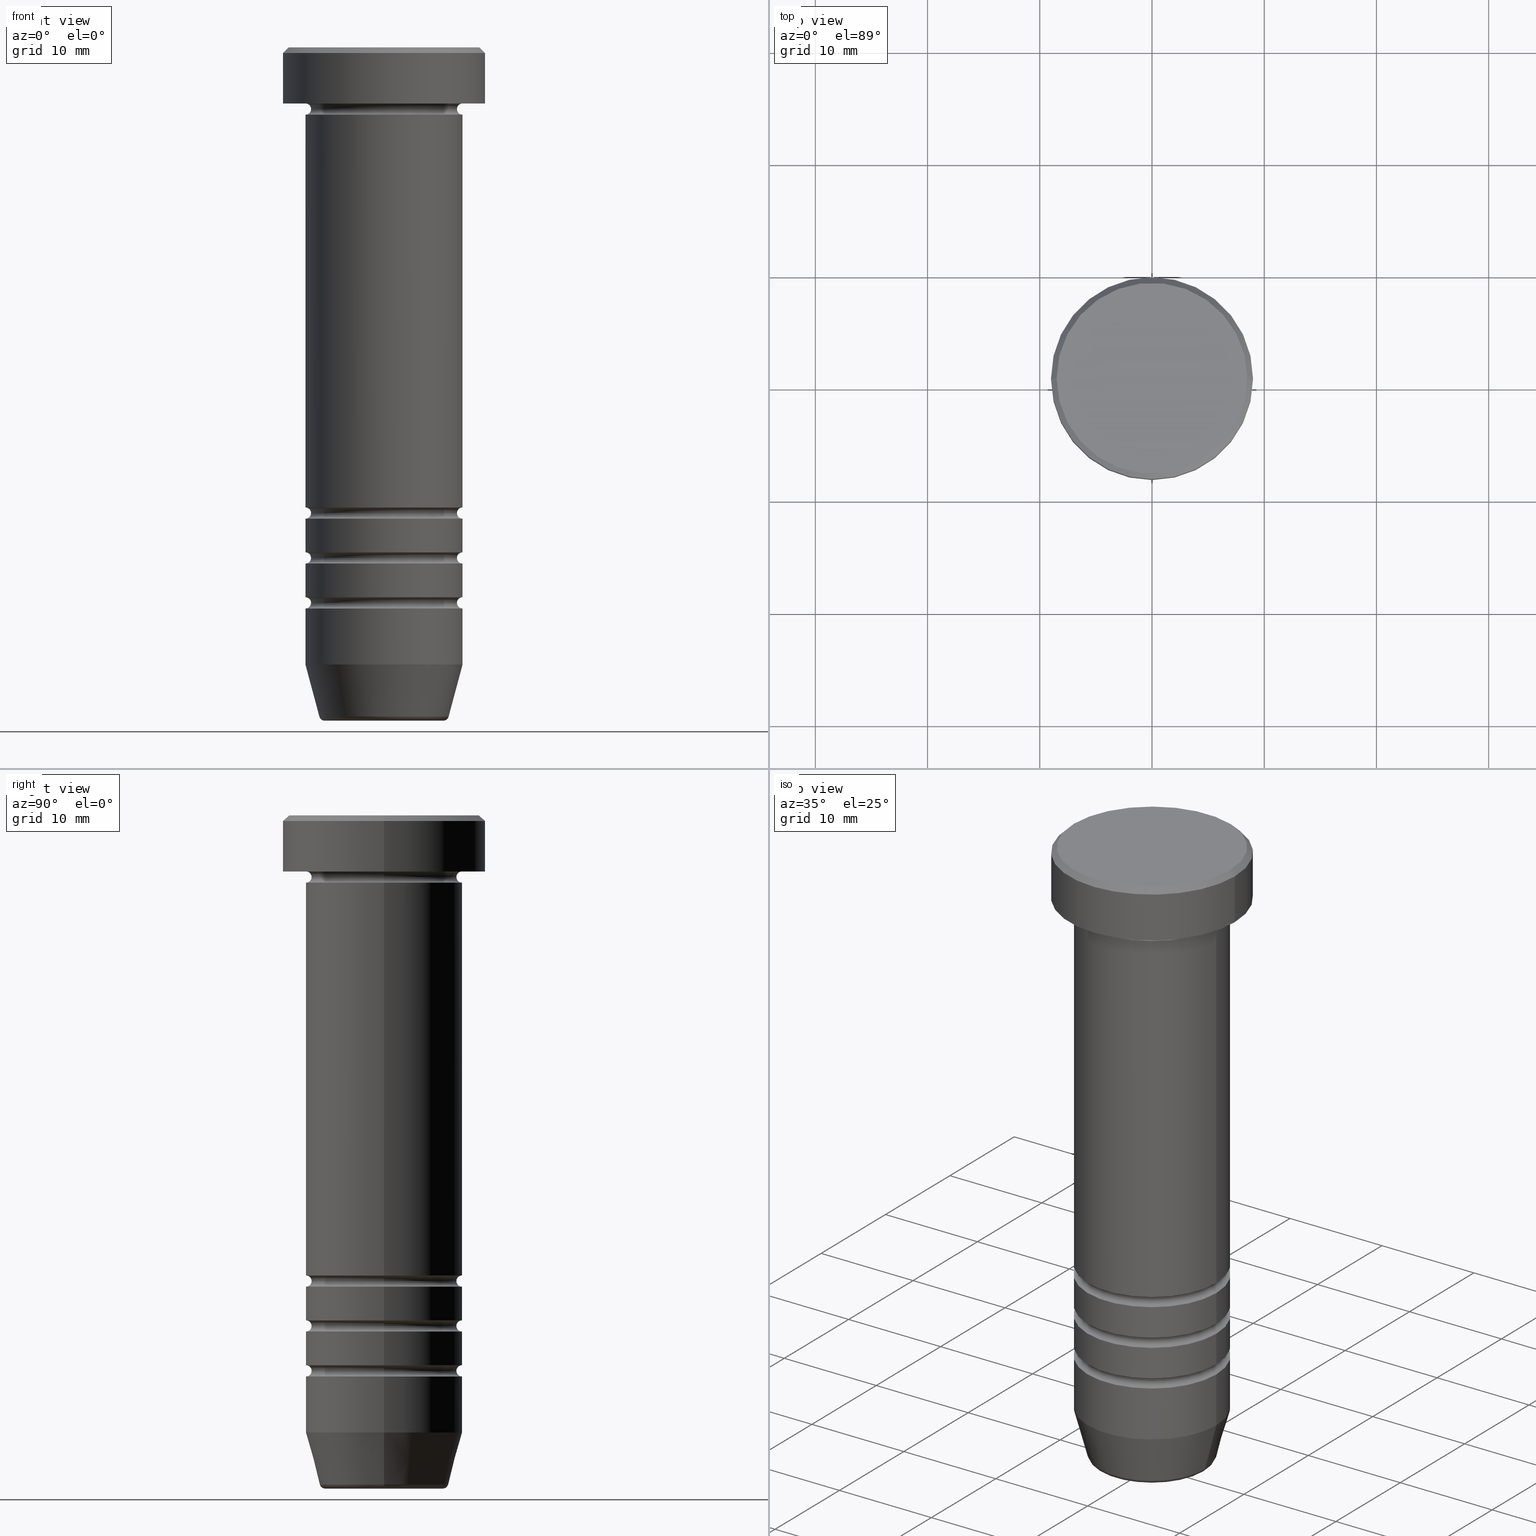
[diagram: canonical four-view strip — front | top / right | iso, engineering-drawing reading convention]
A machine part, canonical four-view strip (front | top / right | iso — engineering-drawing reading convention). The complete STEP part file that produces these views, byte-faithful:
ISO-10303-21;
HEADER;
FILE_DESCRIPTION (( 'STEP AP203' ),
    '1' );
FILE_NAME ('05f9.STEP',
    '2024-01-03T00:04:02',
    ( '' ),
    ( '' ),
    'SwSTEP 2.0',
    'SolidWorks 2019',
    '' );
FILE_SCHEMA (( 'CONFIG_CONTROL_DESIGN' ));
ENDSEC;

DATA;
#1 = CARTESIAN_POINT ( 'NONE',  ( 0.000000000000000000, 0.000000000000000000, -0.5000000000000056621 ) ) ;
#2 = ORIENTED_EDGE ( 'NONE', *, *, #955, .T. ) ;
#3 = DIRECTION ( 'NONE',  ( -1.000000000000000000, 0.000000000000000000, 0.000000000000000000 ) ) ;
#4 = DIRECTION ( 'NONE',  ( -0.000000000000000000, -0.000000000000000000, 1.000000000000000000 ) ) ;
#5 = CARTESIAN_POINT ( 'NONE',  ( 0.000000000000000000, 0.000000000000000000, 0.000000000000000000 ) ) ;
#6 = DIRECTION ( 'NONE',  ( 1.000000000000000000, 0.000000000000000000, 0.000000000000000000 ) ) ;
#7 = CARTESIAN_POINT ( 'NONE',  ( 6.999999999999996447, 0.000000000000000000, 0.000000000000000000 ) ) ;
#8 = APPLICATION_PROTOCOL_DEFINITION ( 'international standard', 'config_control_design', 1994, #907 ) ;
#9 = CARTESIAN_POINT ( 'NONE',  ( 7.000000000000000000, 0.000000000000000000, -6.000000000000001776 ) ) ;
#10 = EDGE_CURVE ( 'NONE', #786, #341, #89, .T. ) ;
#11 = EDGE_LOOP ( 'NONE', ( #547, #804, #512, #541 ) ) ;
#12 = TOROIDAL_SURFACE ( 'NONE', #826, 7.000000000000000888, 0.5000000000000000000 ) ;
#13 = DIRECTION ( 'NONE',  ( -1.000000000000000000, 0.000000000000000000, 0.000000000000000000 ) ) ;
#14 = CARTESIAN_POINT ( 'NONE',  ( 6.999999999999992895, 0.000000000000000000, -41.00000000000000711 ) ) ;
#15 = AXIS2_PLACEMENT_3D ( 'NONE', #179, #99, #753 ) ;
#16 = CIRCLE ( 'NONE', #831, 6.499999999999995559 ) ;
#17 = APPROVAL_STATUS ( 'not_yet_approved' ) ;
#18 = ORIENTED_EDGE ( 'NONE', *, *, #938, .T. ) ;
#19 = PRODUCT_RELATED_PRODUCT_CATEGORY ( 'detail', '', ( #574 ) ) ;
#20 = CARTESIAN_POINT ( 'NONE',  ( 0.000000000000000000, 0.000000000000000000, 0.000000000000000000 ) ) ;
#21 = DIRECTION ( 'NONE',  ( 1.224646799147353207E-16, 1.000000000000000000, 0.000000000000000000 ) ) ;
#22 = DIRECTION ( 'NONE',  ( 0.000000000000000000, 0.000000000000000000, -1.000000000000000000 ) ) ;
#23 = CARTESIAN_POINT ( 'NONE',  ( 0.000000000000000000, 0.000000000000000000, -42.00000000000000711 ) ) ;
#24 = ORIENTED_EDGE ( 'NONE', *, *, #1003, .T. ) ;
#25 = EDGE_CURVE ( 'NONE', #716, #763, #658, .T. ) ;
#26 = DIRECTION ( 'NONE',  ( 1.000000000000000000, 0.000000000000000000, 0.000000000000000000 ) ) ;
#27 = PERSON_AND_ORGANIZATION ( #197, #98 ) ;
#28 = CARTESIAN_POINT ( 'NONE',  ( 0.000000000000000000, 0.000000000000000000, -5.500000000000001776 ) ) ;
#29 = VERTEX_POINT ( 'NONE', #419 ) ;
#30 = DIRECTION ( 'NONE',  ( -0.000000000000000000, -0.000000000000000000, 1.000000000000000000 ) ) ;
#31 = ORIENTED_EDGE ( 'NONE', *, *, #594, .F. ) ;
#32 = LINE ( 'NONE', #345, #859 ) ;
#33 = CIRCLE ( 'NONE', #127, 7.000000000000000888 ) ;
#34 = EDGE_CURVE ( 'NONE', #371, #957, #259, .T. ) ;
#35 = AXIS2_PLACEMENT_3D ( 'NONE', #652, #659, #6 ) ;
#36 = DIRECTION ( 'NONE',  ( -0.000000000000000000, -0.000000000000000000, 1.000000000000000000 ) ) ;
#37 = AXIS2_PLACEMENT_3D ( 'NONE', #332, #821, #572 ) ;
#38 = EDGE_LOOP ( 'NONE', ( #140, #936, #318, #1026 ) ) ;
#39 = ORIENTED_EDGE ( 'NONE', *, *, #714, .F. ) ;
#40 = CARTESIAN_POINT ( 'NONE',  ( 0.000000000000000000, 0.000000000000000000, 0.000000000000000000 ) ) ;
#41 = CARTESIAN_POINT ( 'NONE',  ( -7.000000000000000000, 8.572527594031473190E-16, -6.000000000000001776 ) ) ;
#42 = DIRECTION ( 'NONE',  ( 0.000000000000000000, 0.000000000000000000, -1.000000000000000000 ) ) ;
#43 = EDGE_LOOP ( 'NONE', ( #699, #635, #152, #431 ) ) ;
#44 = PLANE ( 'NONE',  #1021 ) ;
#45 = CARTESIAN_POINT ( 'NONE',  ( 0.000000000000000000, 0.000000000000000000, -5.500000000000001776 ) ) ;
#46 = CARTESIAN_POINT ( 'NONE',  ( -6.999999999999999112, 8.572527594031472204E-16, 0.000000000000000000 ) ) ;
#47 = CARTESIAN_POINT ( 'NONE',  ( 0.000000000000000000, 0.000000000000000000, -41.50000000000000711 ) ) ;
#48 = VERTEX_POINT ( 'NONE', #182 ) ;
#49 = PLANE ( 'NONE',  #276 ) ;
#50 = EDGE_CURVE ( 'NONE', #471, #875, #755, .T. ) ;
#51 = ORIENTED_EDGE ( 'NONE', *, *, #353, .T. ) ;
#52 = APPLICATION_PROTOCOL_DEFINITION ( 'international standard', 'config_control_design', 1994, #853 ) ;
#53 = FACE_OUTER_BOUND ( 'NONE', #624, .T. ) ;
#54 = DIRECTION ( 'NONE',  ( -0.000000000000000000, -0.000000000000000000, 1.000000000000000000 ) ) ;
#55 = ORIENTED_EDGE ( 'NONE', *, *, #646, .T. ) ;
#56 = DIRECTION ( 'NONE',  ( -0.000000000000000000, -0.000000000000000000, 1.000000000000000000 ) ) ;
#57 = ORIENTED_EDGE ( 'NONE', *, *, #626, .T. ) ;
#58 = EDGE_CURVE ( 'NONE', #848, #612, #492, .T. ) ;
#59 = CARTESIAN_POINT ( 'NONE',  ( -7.000000000000000000, 8.572527594031472204E-16, -15.00000000000000000 ) ) ;
#60 = CYLINDRICAL_SURFACE ( 'NONE', #92, 6.999999999999996447 ) ;
#61 = ORIENTED_EDGE ( 'NONE', *, *, #141, .F. ) ;
#62 = ADVANCED_FACE ( 'NONE', ( #177 ), #573, .T. ) ;
#63 = DIRECTION ( 'NONE',  ( 1.000000000000000000, 0.000000000000000000, 0.000000000000000000 ) ) ;
#64 = ADVANCED_FACE ( 'NONE', ( #76 ), #892, .T. ) ;
#65 = AXIS2_PLACEMENT_3D ( 'NONE', #337, #640, #567 ) ;
#66 = DIRECTION ( 'NONE',  ( -0.000000000000000000, -0.000000000000000000, 1.000000000000000000 ) ) ;
#67 = AXIS2_PLACEMENT_3D ( 'NONE', #238, #83, #554 ) ;
#68 = AXIS2_PLACEMENT_3D ( 'NONE', #97, #751, #1042 ) ;
#69 = ORIENTED_EDGE ( 'NONE', *, *, #349, .F. ) ;
#70 = AXIS2_PLACEMENT_3D ( 'NONE', #241, #21, #591 ) ;
#71 = CC_DESIGN_APPROVAL ( #1011, ( #601 ) ) ;
#72 = CYLINDRICAL_SURFACE ( 'NONE', #411, 7.000000000000000000 ) ;
#73 = CARTESIAN_POINT ( 'NONE',  ( 7.000000000000000000, 0.000000000000000000, -15.00000000000000000 ) ) ;
#74 = DIRECTION ( 'NONE',  ( -1.000000000000000000, -1.224646799147351482E-16, 0.000000000000000000 ) ) ;
#75 = FACE_OUTER_BOUND ( 'NONE', #381, .T. ) ;
#76 = FACE_OUTER_BOUND ( 'NONE', #284, .T. ) ;
#77 = CALENDAR_DATE ( 2024, 3, 1 ) ;
#78 = DIRECTION ( 'NONE',  ( 1.000000000000000000, 0.000000000000000000, 0.000000000000000000 ) ) ;
#79 = MANIFOLD_SOLID_BREP ( 'Zkosen�1', #999 ) ;
#80 = FACE_OUTER_BOUND ( 'NONE', #902, .T. ) ;
#81 = DIRECTION ( 'NONE',  ( -0.000000000000000000, -0.000000000000000000, 1.000000000000000000 ) ) ;
#82 = DIRECTION ( 'NONE',  ( -0.000000000000000000, -0.000000000000000000, 1.000000000000000000 ) ) ;
#83 = DIRECTION ( 'NONE',  ( 0.000000000000000000, -1.000000000000000000, 0.000000000000000000 ) ) ;
#84 = EDGE_CURVE ( 'NONE', #316, #469, #312, .T. ) ;
#85 = CARTESIAN_POINT ( 'NONE',  ( 0.000000000000000000, 0.000000000000000000, -45.50000000000000000 ) ) ;
#86 = ORIENTED_EDGE ( 'NONE', *, *, #765, .F. ) ;
#87 = CARTESIAN_POINT ( 'NONE',  ( 0.000000000000000000, 0.000000000000000000, -50.00000000000000000 ) ) ;
#88 = CARTESIAN_POINT ( 'NONE',  ( 0.000000000000000000, 0.000000000000000000, -41.50000000000000711 ) ) ;
#89 = CIRCLE ( 'NONE', #824, 7.000000000000000000 ) ;
#90 = CARTESIAN_POINT ( 'NONE',  ( 0.000000000000000000, 0.000000000000000000, -15.00000000000000000 ) ) ;
#91 = AXIS2_PLACEMENT_3D ( 'NONE', #418, #4, #578 ) ;
#92 = AXIS2_PLACEMENT_3D ( 'NONE', #1029, #447, #298 ) ;
#93 = EDGE_CURVE ( 'NONE', #786, #680, #395, .T. ) ;
#94 = VECTOR ( 'NONE', #777, 1000.000000000000114 ) ;
#95 = DIRECTION ( 'NONE',  ( -1.000000000000000000, 0.000000000000000000, 0.000000000000000000 ) ) ;
#96 = LOCAL_TIME ( 1, 4, 2.000000000000000000, #104 ) ;
#97 = CARTESIAN_POINT ( 'NONE',  ( 0.000000000000000000, 0.000000000000000000, -59.62940952255126348 ) ) ;
#98 = ORGANIZATION ( 'NEUR�EN�', 'NEUR�EN�', '' ) ;
#99 = DIRECTION ( 'NONE',  ( -1.224646799147353207E-16, 1.000000000000000000, 0.000000000000000000 ) ) ;
#100 = CARTESIAN_POINT ( 'NONE',  ( 0.000000000000000000, 0.000000000000000000, -41.50000000000000711 ) ) ;
#101 = DIRECTION ( 'NONE',  ( 1.000000000000000000, 0.000000000000000000, 0.000000000000000000 ) ) ;
#102 = DIRECTION ( 'NONE',  ( 1.000000000000000000, 0.000000000000000000, 0.000000000000000000 ) ) ;
#103 = EDGE_CURVE ( 'NONE', #750, #379, #611, .T. ) ;
#104 = COORDINATED_UNIVERSAL_TIME_OFFSET ( 1, 0, .AHEAD. ) ;
#105 = CARTESIAN_POINT ( 'NONE',  ( 0.000000000000000000, 0.000000000000000000, -59.62940952255126348 ) ) ;
#106 = ORIENTED_EDGE ( 'NONE', *, *, #1036, .F. ) ;
#107 = DIRECTION ( 'NONE',  ( -0.000000000000000000, -0.000000000000000000, 1.000000000000000000 ) ) ;
#108 = APPROVAL_ROLE ( '' ) ;
#109 = ADVANCED_FACE ( 'NONE', ( #400 ), #913, .F. ) ;
#110 = EDGE_LOOP ( 'NONE', ( #18, #230 ) ) ;
#111 = AXIS2_PLACEMENT_3D ( 'NONE', #884, #876, #380 ) ;
#112 = AXIS2_PLACEMENT_3D ( 'NONE', #290, #874, #948 ) ;
#113 = AXIS2_PLACEMENT_3D ( 'NONE', #296, #533, #709 ) ;
#114 = PERSON_AND_ORGANIZATION ( #197, #98 ) ;
#115 = CYLINDRICAL_SURFACE ( 'NONE', #931, 6.999999999999996447 ) ;
#116 = EDGE_LOOP ( 'NONE', ( #422, #203, #1006, #251 ) ) ;
#117 = ADVANCED_FACE ( 'NONE', ( #983 ), #733, .T. ) ;
#118 = CARTESIAN_POINT ( 'NONE',  ( -6.999999999999995559, 0.000000000000000000, -45.50000000000000711 ) ) ;
#119 = PERSON_AND_ORGANIZATION ( #197, #98 ) ;
#120 = VERTEX_POINT ( 'NONE', #173 ) ;
#121 = ORIENTED_EDGE ( 'NONE', *, *, #697, .F. ) ;
#122 = ADVANCED_FACE ( 'NONE', ( #818 ), #12, .F. ) ;
#123 = ORIENTED_EDGE ( 'NONE', *, *, #513, .F. ) ;
#124 = ORIENTED_EDGE ( 'NONE', *, *, #25, .T. ) ;
#125 = ORIENTED_EDGE ( 'NONE', *, *, #1027, .F. ) ;
#126 = DIRECTION ( 'NONE',  ( -0.000000000000000000, -0.000000000000000000, 1.000000000000000000 ) ) ;
#127 = AXIS2_PLACEMENT_3D ( 'NONE', #484, #82, #333 ) ;
#128 = TOROIDAL_SURFACE ( 'NONE', #648, 7.000000000000000888, 0.5000000000000000000 ) ;
#129 = CARTESIAN_POINT ( 'NONE',  ( -6.999999999999996447, 8.572527594031468259E-16, 0.000000000000000000 ) ) ;
#130 = CONICAL_SURFACE ( 'NONE', #510, 8.499999999999996447, 0.7853981633974447263 ) ;
#131 = CARTESIAN_POINT ( 'NONE',  ( -7.000000000000000000, 8.572527594031473190E-16, -15.00000000000000000 ) ) ;
#132 = DIRECTION ( 'NONE',  ( 1.000000000000000000, 0.000000000000000000, 0.000000000000000000 ) ) ;
#133 = EDGE_LOOP ( 'NONE', ( #106, #820, #588, #440 ) ) ;
#134 = ADVANCED_FACE ( 'NONE', ( #144 ), #891, .T. ) ;
#135 = CARTESIAN_POINT ( 'NONE',  ( 5.660254037844382857, 0.000000000000000000, -60.00000000000000000 ) ) ;
#136 = ORIENTED_EDGE ( 'NONE', *, *, #272, .F. ) ;
#137 = CARTESIAN_POINT ( 'NONE',  ( 7.000000000000000000, 0.000000000000000000, 0.000000000000000000 ) ) ;
#138 = VERTEX_POINT ( 'NONE', #465 ) ;
#139 = CARTESIAN_POINT ( 'NONE',  ( 0.000000000000000000, 0.000000000000000000, -49.50000000000000000 ) ) ;
#140 = ORIENTED_EDGE ( 'NONE', *, *, #1003, .F. ) ;
#141 = EDGE_CURVE ( 'NONE', #371, #750, #1000, .T. ) ;
#142 = CARTESIAN_POINT ( 'NONE',  ( 6.999999999999995559, 8.572527594031467273E-16, -45.50000000000000711 ) ) ;
#143 = ORIENTED_EDGE ( 'NONE', *, *, #1044, .T. ) ;
#144 = FACE_OUTER_BOUND ( 'NONE', #116, .T. ) ;
#145 = ORIENTED_EDGE ( 'NONE', *, *, #714, .T. ) ;
#146 = DATE_TIME_ROLE ( 'classification_date' ) ;
#147 = TOROIDAL_SURFACE ( 'NONE', #91, 5.276590543854902116, 0.5000000000000000000 ) ;
#148 = CARTESIAN_POINT ( 'NONE',  ( 0.000000000000000000, 0.000000000000000000, -45.00000000000000000 ) ) ;
#149 = ORIENTED_EDGE ( 'NONE', *, *, #281, .T. ) ;
#150 = AXIS2_PLACEMENT_3D ( 'NONE', #355, #1002, #837 ) ;
#151 = AXIS2_PLACEMENT_3D ( 'NONE', #976, #909, #180 ) ;
#152 = ORIENTED_EDGE ( 'NONE', *, *, #779, .T. ) ;
#153 = ADVANCED_FACE ( 'NONE', ( #803 ), #49, .F. ) ;
#154 = APPROVAL_PERSON_ORGANIZATION ( #873, #866, #222 ) ;
#155 = CALENDAR_DATE ( 2024, 3, 1 ) ;
#156 = CARTESIAN_POINT ( 'NONE',  ( 0.000000000000000000, 0.000000000000000000, -49.50000000000000000 ) ) ;
#157 = ORIENTED_EDGE ( 'NONE', *, *, #825, .T. ) ;
#158 = CARTESIAN_POINT ( 'NONE',  ( 0.000000000000000000, 0.000000000000000000, -60.00000000000000000 ) ) ;
#159 = ORIENTED_EDGE ( 'NONE', *, *, #834, .T. ) ;
#160 = ADVANCED_FACE ( 'NONE', ( #636 ), #550, .T. ) ;
#161 = DIRECTION ( 'NONE',  ( 1.000000000000000000, 0.000000000000000000, 0.000000000000000000 ) ) ;
#162 = ORIENTED_EDGE ( 'NONE', *, *, #752, .F. ) ;
#163 = CARTESIAN_POINT ( 'NONE',  ( 0.000000000000000000, 0.000000000000000000, -5.000000000000000888 ) ) ;
#164 = DIRECTION ( 'NONE',  ( -1.000000000000000000, 0.000000000000000000, 0.000000000000000000 ) ) ;
#165 = AXIS2_PLACEMENT_3D ( 'NONE', #944, #357, #686 ) ;
#166 = AXIS2_PLACEMENT_3D ( 'NONE', #206, #737, #42 ) ;
#167 = DIRECTION ( 'NONE',  ( -0.000000000000000000, -0.000000000000000000, 1.000000000000000000 ) ) ;
#168 = CIRCLE ( 'NONE', #527, 5.276590543854902116 ) ;
#169 = APPROVAL_PERSON_ORGANIZATION ( #119, #621, #108 ) ;
#170 = DIRECTION ( 'NONE',  ( 0.000000000000000000, 0.000000000000000000, -1.000000000000000000 ) ) ;
#171 = LINE ( 'NONE', #1043, #974 ) ;
#172 = EDGE_CURVE ( 'NONE', #623, #323, #971, .T. ) ;
#173 = CARTESIAN_POINT ( 'NONE',  ( -8.499999999999996447, 0.000000000000000000, 0.000000000000000000 ) ) ;
#174 = FACE_OUTER_BOUND ( 'NONE', #535, .T. ) ;
#175 = DIRECTION ( 'NONE',  ( 0.000000000000000000, 0.000000000000000000, -1.000000000000000000 ) ) ;
#176 = EDGE_CURVE ( 'NONE', #763, #852, #458, .T. ) ;
#177 = FACE_OUTER_BOUND ( 'NONE', #11, .T. ) ;
#178 = DIRECTION ( 'NONE',  ( -0.000000000000000000, -0.000000000000000000, 1.000000000000000000 ) ) ;
#179 = CARTESIAN_POINT ( 'NONE',  ( 6.999999999999995559, 8.572527594031467273E-16, -41.50000000000000711 ) ) ;
#180 = DIRECTION ( 'NONE',  ( 1.000000000000000000, 0.000000000000000000, 0.000000000000000000 ) ) ;
#181 = CARTESIAN_POINT ( 'NONE',  ( 0.000000000000000000, 0.000000000000000000, -46.00000000000000711 ) ) ;
#182 = CARTESIAN_POINT ( 'NONE',  ( -6.999999999999992895, 8.572527594031466287E-16, -41.00000000000000711 ) ) ;
#183 = CIRCLE ( 'NONE', #209, 7.000000000000000000 ) ;
#184 = VECTOR ( 'NONE', #735, 1000.000000000000114 ) ;
#185 = ADVANCED_FACE ( 'NONE', ( #255 ), #147, .T. ) ;
#186 = AXIS2_PLACEMENT_3D ( 'NONE', #163, #802, #965 ) ;
#187 = LINE ( 'NONE', #7, #725 ) ;
#188 = ORIENTED_EDGE ( 'NONE', *, *, #738, .F. ) ;
#189 = ADVANCED_FACE ( 'NONE', ( #836 ), #542, .F. ) ;
#190 = CARTESIAN_POINT ( 'NONE',  ( -5.276590543854902116, 6.757689212787763943E-16, -60.00000000000000000 ) ) ;
#191 = CARTESIAN_POINT ( 'NONE',  ( -6.499999999999995559, 8.266365894244627431E-16, -49.50000000000000000 ) ) ;
#192 = DIRECTION ( 'NONE',  ( 1.000000000000000000, 0.000000000000000000, 0.000000000000000000 ) ) ;
#193 = ORIENTED_EDGE ( 'NONE', *, *, #141, .T. ) ;
#194 = APPROVAL_DATE_TIME ( #947, #621 ) ;
#195 = PRODUCT_DEFINITION_SHAPE ( 'NONE', 'NONE',  #719 ) ;
#196 = DIRECTION ( 'NONE',  ( 1.000000000000000000, 0.000000000000000000, 0.000000000000000000 ) ) ;
#197 = PERSON ( 'NEUR�EN�', 'NEUR�EN�', 'NEUR�EN�', ('NEUR�EN�'), ('NEUR�EN�'), ('NEUR�EN�') ) ;
#198 = ORIENTED_EDGE ( 'NONE', *, *, #681, .F. ) ;
#199 = AXIS2_PLACEMENT_3D ( 'NONE', #105, #822, #398 ) ;
#200 = AXIS2_PLACEMENT_3D ( 'NONE', #142, #303, #315 ) ;
#201 = DIRECTION ( 'NONE',  ( -1.000000000000000000, 0.000000000000000000, 0.000000000000000000 ) ) ;
#202 = EDGE_CURVE ( 'NONE', #957, #379, #426, .T. ) ;
#203 = ORIENTED_EDGE ( 'NONE', *, *, #415, .T. ) ;
#204 = CARTESIAN_POINT ( 'NONE',  ( 6.999999999999995559, 0.000000000000000000, -49.50000000000000000 ) ) ;
#205 = EDGE_LOOP ( 'NONE', ( #214, #145, #504, #627 ) ) ;
#206 = CARTESIAN_POINT ( 'NONE',  ( 6.999999999999995559, 0.000000000000000000, -45.50000000000000000 ) ) ;
#207 = EDGE_LOOP ( 'NONE', ( #1017, #675, #51, #839 ) ) ;
#208 = ORIENTED_EDGE ( 'NONE', *, *, #912, .F. ) ;
#209 = AXIS2_PLACEMENT_3D ( 'NONE', #668, #250, #812 ) ;
#210 = CIRCLE ( 'NONE', #15, 0.5000000000000004441 ) ;
#211 = AXIS2_PLACEMENT_3D ( 'NONE', #385, #962, #528 ) ;
#212 = PLANE ( 'NONE',  #211 ) ;
#213 = CARTESIAN_POINT ( 'NONE',  ( -6.499999999999995559, 8.266365894244630389E-16, -45.50000000000000000 ) ) ;
#214 = ORIENTED_EDGE ( 'NONE', *, *, #172, .T. ) ;
#215 = PERSON_AND_ORGANIZATION ( #197, #98 ) ;
#216 = CC_DESIGN_PERSON_AND_ORGANIZATION_ASSIGNMENT ( #114, #555, ( #601 ) ) ;
#217 = CARTESIAN_POINT ( 'NONE',  ( 0.000000000000000000, 0.000000000000000000, -50.00000000000000000 ) ) ;
#218 = CARTESIAN_POINT ( 'NONE',  ( 0.000000000000000000, 0.000000000000000000, -41.50000000000000711 ) ) ;
#219 = ORIENTED_EDGE ( 'NONE', *, *, #797, .F. ) ;
#220 = DIRECTION ( 'NONE',  ( -0.000000000000000000, -0.000000000000000000, 1.000000000000000000 ) ) ;
#221 = ORIENTED_EDGE ( 'NONE', *, *, #1027, .T. ) ;
#222 = APPROVAL_ROLE ( '' ) ;
#223 = DIRECTION ( 'NONE',  ( 0.000000000000000000, -0.000000000000000000, 1.000000000000000000 ) ) ;
#224 = ADVANCED_FACE ( 'NONE', ( #566 ), #683, .F. ) ;
#225 = VERTEX_POINT ( 'NONE', #9 ) ;
#226 = ORIENTED_EDGE ( 'NONE', *, *, #672, .T. ) ;
#227 = TOROIDAL_SURFACE ( 'NONE', #958, 5.276590543854902116, 0.5000000000000000000 ) ;
#228 = AXIS2_PLACEMENT_3D ( 'NONE', #85, #814, #78 ) ;
#229 = FACE_OUTER_BOUND ( 'NONE', #872, .T. ) ;
#230 = ORIENTED_EDGE ( 'NONE', *, *, #256, .T. ) ;
#231 = CIRCLE ( 'NONE', #1005, 0.5000000000000004441 ) ;
#232 = EDGE_CURVE ( 'NONE', #833, #225, #183, .T. ) ;
#233 = ORIENTED_EDGE ( 'NONE', *, *, #676, .F. ) ;
#234 = CARTESIAN_POINT ( 'NONE',  ( 0.000000000000000000, 0.000000000000000000, -45.50000000000000000 ) ) ;
#235 = ORIENTED_EDGE ( 'NONE', *, *, #365, .T. ) ;
#236 = ORIENTED_EDGE ( 'NONE', *, *, #548, .F. ) ;
#237 = DIRECTION ( 'NONE',  ( 1.000000000000000000, 0.000000000000000000, 0.000000000000000000 ) ) ;
#238 = CARTESIAN_POINT ( 'NONE',  ( 5.276590543854902116, 0.000000000000000000, -59.50000000000000000 ) ) ;
#239 = ADVANCED_FACE ( 'NONE', ( #75 ), #227, .T. ) ;
#240 = CARTESIAN_POINT ( 'NONE',  ( 6.999999999999998224, 0.000000000000000000, -45.00000000000000000 ) ) ;
#241 = CARTESIAN_POINT ( 'NONE',  ( -6.999999999999995559, 8.572527594031467273E-16, -49.50000000000000000 ) ) ;
#242 = DIRECTION ( 'NONE',  ( 1.000000000000000000, 0.000000000000000000, 0.000000000000000000 ) ) ;
#243 = AXIS2_PLACEMENT_3D ( 'NONE', #897, #914, #401 ) ;
#244 = AXIS2_PLACEMENT_3D ( 'NONE', #608, #941, #882 ) ;
#245 = DIRECTION ( 'NONE',  ( -0.000000000000000000, -0.000000000000000000, 1.000000000000000000 ) ) ;
#246 = AXIS2_PLACEMENT_3D ( 'NONE', #785, #546, #867 ) ;
#247 = LINE ( 'NONE', #749, #343 ) ;
#248 = EDGE_CURVE ( 'NONE', #316, #710, #407, .T. ) ;
#249 = DIRECTION ( 'NONE',  ( 0.000000000000000000, 0.000000000000000000, -1.000000000000000000 ) ) ;
#250 = DIRECTION ( 'NONE',  ( -0.000000000000000000, -0.000000000000000000, 1.000000000000000000 ) ) ;
#251 = ORIENTED_EDGE ( 'NONE', *, *, #262, .F. ) ;
#252 = DIRECTION ( 'NONE',  ( 1.000000000000000000, 0.000000000000000000, 0.000000000000000000 ) ) ;
#253 = ORIENTED_EDGE ( 'NONE', *, *, #202, .T. ) ;
#254 = CARTESIAN_POINT ( 'NONE',  ( 0.000000000000000000, 0.000000000000000000, -6.000000000000001776 ) ) ;
#255 = FACE_OUTER_BOUND ( 'NONE', #260, .T. ) ;
#256 = EDGE_CURVE ( 'NONE', #469, #516, #33, .T. ) ;
#257 = DIRECTION ( 'NONE',  ( 0.7071067811865451302, 8.659560562354903276E-17, -0.7071067811865500152 ) ) ;
#258 = CARTESIAN_POINT ( 'NONE',  ( 0.000000000000000000, 0.000000000000000000, -41.00000000000000711 ) ) ;
#259 = CIRCLE ( 'NONE', #65, 0.4999999999999995559 ) ;
#260 = EDGE_LOOP ( 'NONE', ( #61, #792, #233, #275 ) ) ;
#261 = CIRCLE ( 'NONE', #1039, 0.5000000000000004441 ) ;
#262 = EDGE_CURVE ( 'NONE', #775, #796, #787, .T. ) ;
#263 = CIRCLE ( 'NONE', #558, 7.000000000000000000 ) ;
#264 = CIRCLE ( 'NONE', #478, 0.5000000000000004441 ) ;
#265 = FACE_OUTER_BOUND ( 'NONE', #530, .T. ) ;
#266 = DIRECTION ( 'NONE',  ( 1.224646799147353207E-16, 1.000000000000000000, 0.000000000000000000 ) ) ;
#267 = VERTEX_POINT ( 'NONE', #434 ) ;
#268 = DIRECTION ( 'NONE',  ( 1.000000000000000000, 0.000000000000000000, 0.000000000000000000 ) ) ;
#269 = COORDINATED_UNIVERSAL_TIME_OFFSET ( 1, 0, .AHEAD. ) ;
#270 = ORIENTED_EDGE ( 'NONE', *, *, #58, .F. ) ;
#271 = FACE_OUTER_BOUND ( 'NONE', #536, .T. ) ;
#272 = EDGE_CURVE ( 'NONE', #341, #786, #557, .T. ) ;
#273 = CALENDAR_DATE ( 2024, 3, 1 ) ;
#274 = CARTESIAN_POINT ( 'NONE',  ( 0.000000000000000000, 0.000000000000000000, -54.99999999999999289 ) ) ;
#275 = ORIENTED_EDGE ( 'NONE', *, *, #103, .F. ) ;
#276 = AXIS2_PLACEMENT_3D ( 'NONE', #619, #1038, #394 ) ;
#277 = AXIS2_PLACEMENT_3D ( 'NONE', #1050, #1061, #645 ) ;
#278 = DIRECTION ( 'NONE',  ( -0.000000000000000000, -0.000000000000000000, 1.000000000000000000 ) ) ;
#279 = TOROIDAL_SURFACE ( 'NONE', #685, 6.999999999999995559, 0.5000000000000000000 ) ;
#280 = TOROIDAL_SURFACE ( 'NONE', #580, 6.999999999999995559, 0.5000000000000000000 ) ;
#281 = EDGE_CURVE ( 'NONE', #710, #516, #771, .T. ) ;
#282 = FACE_OUTER_BOUND ( 'NONE', #953, .T. ) ;
#283 = ORIENTED_EDGE ( 'NONE', *, *, #256, .F. ) ;
#284 = EDGE_LOOP ( 'NONE', ( #39, #159, #55, #236 ) ) ;
#285 = DIRECTION ( 'NONE',  ( 0.000000000000000000, 0.000000000000000000, -1.000000000000000000 ) ) ;
#286 = FACE_OUTER_BOUND ( 'NONE', #782, .T. ) ;
#287 = ORIENTED_EDGE ( 'NONE', *, *, #404, .F. ) ;
#288 = ADVANCED_FACE ( 'NONE', ( #607, #863 ), #44, .T. ) ;
#289 = ORIENTED_EDGE ( 'NONE', *, *, #513, .T. ) ;
#290 = CARTESIAN_POINT ( 'NONE',  ( 0.000000000000000000, 0.000000000000000000, -42.00000000000000711 ) ) ;
#291 = ORIENTED_EDGE ( 'NONE', *, *, #734, .T. ) ;
#292 = ORIENTED_EDGE ( 'NONE', *, *, #1031, .T. ) ;
#293 = EDGE_CURVE ( 'NONE', #612, #225, #769, .T. ) ;
#294 = ORIENTED_EDGE ( 'NONE', *, *, #399, .T. ) ;
#295 = CIRCLE ( 'NONE', #726, 9.000000000000000000 ) ;
#296 = CARTESIAN_POINT ( 'NONE',  ( 0.000000000000000000, 0.000000000000000000, 0.000000000000000000 ) ) ;
#297 = LOCAL_TIME ( 1, 4, 2.000000000000000000, #346 ) ;
#298 = DIRECTION ( 'NONE',  ( 1.000000000000000000, 0.000000000000000000, 0.000000000000000000 ) ) ;
#299 = ORIENTED_EDGE ( 'NONE', *, *, #399, .F. ) ;
#300 = ORIENTED_EDGE ( 'NONE', *, *, #532, .F. ) ;
#301 = DATE_AND_TIME ( #155, #462 ) ;
#302 = EDGE_CURVE ( 'NONE', #684, #29, #441, .T. ) ;
#303 = DIRECTION ( 'NONE',  ( -1.224646799147353207E-16, 1.000000000000000000, 0.000000000000000000 ) ) ;
#304 = EDGE_LOOP ( 'NONE', ( #235, #671 ) ) ;
#305 = DIRECTION ( 'NONE',  ( 1.000000000000000000, 0.000000000000000000, 0.000000000000000000 ) ) ;
#306 = EDGE_LOOP ( 'NONE', ( #1023, #193 ) ) ;
#307 = ADVANCED_FACE ( 'NONE', ( #1007 ), #703, .F. ) ;
#308 = FACE_OUTER_BOUND ( 'NONE', #937, .T. ) ;
#309 = EDGE_LOOP ( 'NONE', ( #466, #299, #869, #1013 ) ) ;
#310 = DIRECTION ( 'NONE',  ( 1.000000000000000000, 0.000000000000000000, 0.000000000000000000 ) ) ;
#311 = ORIENTED_EDGE ( 'NONE', *, *, #857, .T. ) ;
#312 = CIRCLE ( 'NONE', #522, 0.5000000000000004441 ) ;
#313 = VECTOR ( 'NONE', #30, 1000.000000000000000 ) ;
#314 = VECTOR ( 'NONE', #278, 1000.000000000000000 ) ;
#315 = DIRECTION ( 'NONE',  ( -1.000000000000000000, -1.224646799147351482E-16, 0.000000000000000000 ) ) ;
#316 = VERTEX_POINT ( 'NONE', #934 ) ;
#317 = AXIS2_PLACEMENT_3D ( 'NONE', #254, #887, #161 ) ;
#318 = ORIENTED_EDGE ( 'NONE', *, *, #811, .T. ) ;
#319 = FACE_OUTER_BOUND ( 'NONE', #1033, .T. ) ;
#320 = DIRECTION ( 'NONE',  ( -0.000000000000000000, -0.000000000000000000, 1.000000000000000000 ) ) ;
#321 = EDGE_CURVE ( 'NONE', #852, #570, #261, .T. ) ;
#322 = DIRECTION ( 'NONE',  ( 0.000000000000000000, 0.000000000000000000, -1.000000000000000000 ) ) ;
#323 = VERTEX_POINT ( 'NONE', #1014 ) ;
#324 = EDGE_CURVE ( 'NONE', #716, #855, #759, .T. ) ;
#325 = DIRECTION ( 'NONE',  ( 1.000000000000000000, 0.000000000000000000, 0.000000000000000000 ) ) ;
#326 = CARTESIAN_POINT ( 'NONE',  ( 0.000000000000000000, 0.000000000000000000, -45.50000000000000711 ) ) ;
#327 = DIRECTION ( 'NONE',  ( 1.000000000000000000, 0.000000000000000000, 0.000000000000000000 ) ) ;
#328 = AXIS2_PLACEMENT_3D ( 'NONE', #970, #245, #562 ) ;
#329 = CONICAL_SURFACE ( 'NONE', #1024, 8.499999999999996447, 0.7853981633974447263 ) ;
#330 = CIRCLE ( 'NONE', #932, 6.499999999999995559 ) ;
#331 = EDGE_CURVE ( 'NONE', #48, #775, #32, .T. ) ;
#332 = CARTESIAN_POINT ( 'NONE',  ( 0.000000000000000000, 0.000000000000000000, -60.00000000000000000 ) ) ;
#333 = DIRECTION ( 'NONE',  ( -1.000000000000000000, 0.000000000000000000, 0.000000000000000000 ) ) ;
#334 = ORIENTED_EDGE ( 'NONE', *, *, #349, .T. ) ;
#335 = CARTESIAN_POINT ( 'NONE',  ( 5.759553456999435994, 0.000000000000000000, -59.62940952255126348 ) ) ;
#336 = ADVANCED_FACE ( 'NONE', ( #271 ), #924, .T. ) ;
#337 = CARTESIAN_POINT ( 'NONE',  ( -5.276590543854902116, 6.461959719943097531E-16, -59.50000000000000000 ) ) ;
#338 = DIRECTION ( 'NONE',  ( -0.000000000000000000, -0.000000000000000000, 1.000000000000000000 ) ) ;
#339 = PERSON_AND_ORGANIZATION ( #197, #98 ) ;
#340 = DIRECTION ( 'NONE',  ( -1.000000000000000000, 0.000000000000000000, 0.000000000000000000 ) ) ;
#341 = VERTEX_POINT ( 'NONE', #362 ) ;
#342 = AXIS2_PLACEMENT_3D ( 'NONE', #204, #439, #285 ) ;
#343 = VECTOR ( 'NONE', #665, 1000.000000000000114 ) ;
#344 = CIRCLE ( 'NONE', #898, 0.5000000000000004441 ) ;
#345 = CARTESIAN_POINT ( 'NONE',  ( -6.999999999999996447, 8.572527594031468259E-16, 0.000000000000000000 ) ) ;
#346 = COORDINATED_UNIVERSAL_TIME_OFFSET ( 1, 0, .AHEAD. ) ;
#347 = FACE_OUTER_BOUND ( 'NONE', #205, .T. ) ;
#348 = VERTEX_POINT ( 'NONE', #350 ) ;
#349 = EDGE_CURVE ( 'NONE', #605, #716, #389, .T. ) ;
#350 = CARTESIAN_POINT ( 'NONE',  ( 7.000000000000000000, 0.000000000000000000, -42.00000000000000711 ) ) ;
#351 = DIRECTION ( 'NONE',  ( -0.000000000000000000, -0.000000000000000000, 1.000000000000000000 ) ) ;
#352 = ORIENTED_EDGE ( 'NONE', *, *, #392, .T. ) ;
#353 = EDGE_CURVE ( 'NONE', #556, #875, #1010, .T. ) ;
#354 = APPROVAL_STATUS ( 'not_yet_approved' ) ;
#355 = CARTESIAN_POINT ( 'NONE',  ( 0.000000000000000000, 0.000000000000000000, -45.50000000000000000 ) ) ;
#356 = ORIENTED_EDGE ( 'NONE', *, *, #967, .F. ) ;
#357 = DIRECTION ( 'NONE',  ( -0.000000000000000000, -1.000000000000000000, -0.000000000000000000 ) ) ;
#358 = VECTOR ( 'NONE', #320, 1000.000000000000000 ) ;
#359 = VECTOR ( 'NONE', #966, 1000.000000000000000 ) ;
#360 = ORIENTED_EDGE ( 'NONE', *, *, #232, .F. ) ;
#361 = AXIS2_PLACEMENT_3D ( 'NONE', #258, #178, #585 ) ;
#362 = CARTESIAN_POINT ( 'NONE',  ( -7.000000000000000000, 8.572527594031473190E-16, -54.99999999999999289 ) ) ;
#363 = AXIS2_PLACEMENT_3D ( 'NONE', #890, #488, #397 ) ;
#364 = AXIS2_PLACEMENT_3D ( 'NONE', #139, #678, #760 ) ;
#365 = EDGE_CURVE ( 'NONE', #796, #775, #523, .T. ) ;
#366 = ORIENTED_EDGE ( 'NONE', *, *, #594, .T. ) ;
#367 = DIRECTION ( 'NONE',  ( -0.000000000000000000, -0.000000000000000000, 1.000000000000000000 ) ) ;
#368 = CARTESIAN_POINT ( 'NONE',  ( 0.000000000000000000, 0.000000000000000000, -49.00000000000000000 ) ) ;
#369 = CC_DESIGN_PERSON_AND_ORGANIZATION_ASSIGNMENT ( #1046, #641, ( #747 ) ) ;
#370 = CARTESIAN_POINT ( 'NONE',  ( 0.000000000000000000, 0.000000000000000000, -60.00000000000000000 ) ) ;
#371 = VERTEX_POINT ( 'NONE', #190 ) ;
#372 = ORIENTED_EDGE ( 'NONE', *, *, #176, .F. ) ;
#373 = DIRECTION ( 'NONE',  ( 1.000000000000000000, 0.000000000000000000, 0.000000000000000000 ) ) ;
#374 = EDGE_LOOP ( 'NONE', ( #704, #933, #654, #856 ) ) ;
#375 =( LENGTH_UNIT ( ) NAMED_UNIT ( * ) SI_UNIT ( .MILLI., .METRE. ) );
#376 = UNCERTAINTY_MEASURE_WITH_UNIT (LENGTH_MEASURE( 1.000000000000000082E-05 ), #375, 'distance_accuracy_value', 'NONE');
#377 = CIRCLE ( 'NONE', #864, 7.000000000000000000 ) ;
#378 = PLANE ( 'NONE',  #791 ) ;
#379 = VERTEX_POINT ( 'NONE', #335 ) ;
#380 = DIRECTION ( 'NONE',  ( 1.000000000000000000, 0.000000000000000000, 0.000000000000000000 ) ) ;
#381 = EDGE_LOOP ( 'NONE', ( #609, #386, #693, #514 ) ) ;
#382 = ADVANCED_FACE ( 'NONE', ( #575 ), #421, .F. ) ;
#383 = DIRECTION ( 'NONE',  ( 1.000000000000000000, 0.000000000000000000, 0.000000000000000000 ) ) ;
#384 = ORIENTED_EDGE ( 'NONE', *, *, #538, .F. ) ;
#385 = CARTESIAN_POINT ( 'NONE',  ( 0.000000000000000000, 7.000000000000000000, -15.00000000000000000 ) ) ;
#386 = ORIENTED_EDGE ( 'NONE', *, *, #981, .F. ) ;
#387 = ORIENTED_EDGE ( 'NONE', *, *, #889, .F. ) ;
#388 = AXIS2_PLACEMENT_3D ( 'NONE', #5, #823, #498 ) ;
#389 = CIRCLE ( 'NONE', #597, 6.999999999999992895 ) ;
#390 = AXIS2_PLACEMENT_3D ( 'NONE', #45, #56, #584 ) ;
#391 = DIRECTION ( 'NONE',  ( 1.000000000000000000, 0.000000000000000000, 0.000000000000000000 ) ) ;
#392 = EDGE_CURVE ( 'NONE', #1030, #875, #940, .T. ) ;
#393 = CIRCLE ( 'NONE', #560, 6.499999999999995559 ) ;
#394 = DIRECTION ( 'NONE',  ( -1.000000000000000000, 0.000000000000000000, -0.000000000000000000 ) ) ;
#395 = LINE ( 'NONE', #813, #359 ) ;
#396 = CARTESIAN_POINT ( 'NONE',  ( -5.660254037844382857, 6.931811989807005336E-16, -60.00000000000000000 ) ) ;
#397 = DIRECTION ( 'NONE',  ( 0.000000000000000000, 0.000000000000000000, -1.000000000000000000 ) ) ;
#398 = DIRECTION ( 'NONE',  ( -1.000000000000000000, 0.000000000000000000, 0.000000000000000000 ) ) ;
#399 = EDGE_CURVE ( 'NONE', #120, #471, #843, .T. ) ;
#400 = FACE_OUTER_BOUND ( 'NONE', #883, .T. ) ;
#401 = DIRECTION ( 'NONE',  ( 1.000000000000000000, 0.000000000000000000, 0.000000000000000000 ) ) ;
#402 = DIRECTION ( 'NONE',  ( -1.000000000000000000, 0.000000000000000000, 0.000000000000000000 ) ) ;
#403 = DIRECTION ( 'NONE',  ( -0.000000000000000000, -0.000000000000000000, 1.000000000000000000 ) ) ;
#404 = EDGE_CURVE ( 'NONE', #638, #796, #187, .T. ) ;
#405 = CARTESIAN_POINT ( 'NONE',  ( 0.000000000000000000, 0.000000000000000000, 0.000000000000000000 ) ) ;
#406 = MANIFOLD_SOLID_BREP ( 'Zaoblit5', #723 ) ;
#407 = CIRCLE ( 'NONE', #493, 6.500000000000000888 ) ;
#408 = CYLINDRICAL_SURFACE ( 'NONE', #151, 6.999999999999996447 ) ;
#409 = DIRECTION ( 'NONE',  ( 1.000000000000000000, 0.000000000000000000, 0.000000000000000000 ) ) ;
#410 = CIRCLE ( 'NONE', #1001, 6.999999999999992895 ) ;
#411 = AXIS2_PLACEMENT_3D ( 'NONE', #405, #660, #988 ) ;
#412 = DIRECTION ( 'NONE',  ( 1.000000000000000000, 0.000000000000000000, 0.000000000000000000 ) ) ;
#413 = AXIS2_PLACEMENT_3D ( 'NONE', #370, #468, #373 ) ;
#414 = LOCAL_TIME ( 1, 4, 2.000000000000000000, #269 ) ;
#415 = EDGE_CURVE ( 'NONE', #48, #638, #845, .T. ) ;
#416 = CARTESIAN_POINT ( 'NONE',  ( 0.000000000000000000, 0.000000000000000000, 0.000000000000000000 ) ) ;
#417 = FACE_OUTER_BOUND ( 'NONE', #309, .T. ) ;
#418 = CARTESIAN_POINT ( 'NONE',  ( 0.000000000000000000, 0.000000000000000000, -59.50000000000000000 ) ) ;
#419 = CARTESIAN_POINT ( 'NONE',  ( -6.499999999999995559, 8.266365894244627431E-16, -41.50000000000000711 ) ) ;
#420 = CARTESIAN_POINT ( 'NONE',  ( -6.999999999999995559, 8.572527594031467273E-16, -41.50000000000000711 ) ) ;
#421 = PLANE ( 'NONE',  #243 ) ;
#422 = ORIENTED_EDGE ( 'NONE', *, *, #331, .F. ) ;
#423 = DIRECTION ( 'NONE',  ( -0.000000000000000000, -0.000000000000000000, 1.000000000000000000 ) ) ;
#424 = EDGE_CURVE ( 'NONE', #120, #1030, #247, .T. ) ;
#425 = ORIENTED_EDGE ( 'NONE', *, *, #321, .T. ) ;
#426 = CIRCLE ( 'NONE', #199, 5.759553456999435994 ) ;
#427 = CIRCLE ( 'NONE', #112, 7.000000000000000000 ) ;
#428 = CIRCLE ( 'NONE', #690, 7.000000000000000000 ) ;
#429 = PERSON_AND_ORGANIZATION_ROLE ( 'creator' ) ;
#430 = CARTESIAN_POINT ( 'NONE',  ( 0.000000000000000000, 0.000000000000000000, -41.00000000000000711 ) ) ;
#431 = ORIENTED_EDGE ( 'NONE', *, *, #302, .F. ) ;
#432 = DIRECTION ( 'NONE',  ( -0.000000000000000000, -1.000000000000000000, -0.000000000000000000 ) ) ;
#433 = EDGE_CURVE ( 'NONE', #875, #1030, #773, .T. ) ;
#434 = CARTESIAN_POINT ( 'NONE',  ( -7.000000000000000000, 8.572527594031473190E-16, -50.00000000000000000 ) ) ;
#435 = DIRECTION ( 'NONE',  ( 1.000000000000000000, 0.000000000000000000, 0.000000000000000000 ) ) ;
#436 = ORIENTED_EDGE ( 'NONE', *, *, #176, .T. ) ;
#437 = DIRECTION ( 'NONE',  ( -1.000000000000000000, 0.000000000000000000, -0.000000000000000000 ) ) ;
#438 = ADVANCED_FACE ( 'NONE', ( #174 ), #579, .F. ) ;
#439 = DIRECTION ( 'NONE',  ( 0.000000000000000000, -1.000000000000000000, 0.000000000000000000 ) ) ;
#440 = ORIENTED_EDGE ( 'NONE', *, *, #877, .T. ) ;
#441 = CIRCLE ( 'NONE', #165, 0.5000000000000004441 ) ;
#442 = TOROIDAL_SURFACE ( 'NONE', #879, 7.000000000000000888, 0.5000000000000000000 ) ;
#443 = TOROIDAL_SURFACE ( 'NONE', #808, 6.999999999999995559, 0.5000000000000000000 ) ;
#444 = CC_DESIGN_DATE_AND_TIME_ASSIGNMENT ( #301, #146, ( #747 ) ) ;
#445 = CARTESIAN_POINT ( 'NONE',  ( -7.000000000000000888, 0.000000000000000000, -5.000000000000000888 ) ) ;
#446 = CARTESIAN_POINT ( 'NONE',  ( 6.499999999999995559, 0.000000000000000000, -49.50000000000000000 ) ) ;
#447 = DIRECTION ( 'NONE',  ( -0.000000000000000000, -0.000000000000000000, 1.000000000000000000 ) ) ;
#448 = FACE_OUTER_BOUND ( 'NONE', #795, .T. ) ;
#449 = DIRECTION ( 'NONE',  ( 1.000000000000000000, 0.000000000000000000, 0.000000000000000000 ) ) ;
#450 = ORIENTED_EDGE ( 'NONE', *, *, #58, .T. ) ;
#451 = LINE ( 'NONE', #571, #1040 ) ;
#452 = ORIENTED_EDGE ( 'NONE', *, *, #501, .F. ) ;
#453 = PERSON_AND_ORGANIZATION_ROLE ( 'creator' ) ;
#454 = CARTESIAN_POINT ( 'NONE',  ( 7.000000000000000000, 0.000000000000000000, -15.00000000000000000 ) ) ;
#455 = ORIENTED_EDGE ( 'NONE', *, *, #365, .F. ) ;
#456 = ADVANCED_FACE ( 'NONE', ( #491 ), #72, .T. ) ;
#457 = EDGE_LOOP ( 'NONE', ( #712, #2, #878, #1009 ) ) ;
#458 = CIRCLE ( 'NONE', #894, 7.000000000000000000 ) ;
#459 = CIRCLE ( 'NONE', #1055, 6.999999999999992895 ) ;
#460 = CIRCLE ( 'NONE', #186, 7.000000000000000888 ) ;
#461 = CARTESIAN_POINT ( 'NONE',  ( 7.000000000000000000, 0.000000000000000000, -54.99999999999999289 ) ) ;
#462 = LOCAL_TIME ( 1, 4, 2.000000000000000000, #713 ) ;
#463 = DIRECTION ( 'NONE',  ( 1.000000000000000000, 0.000000000000000000, 0.000000000000000000 ) ) ;
#464 = EDGE_LOOP ( 'NONE', ( #507, #741, #592, #86 ) ) ;
#465 = CARTESIAN_POINT ( 'NONE',  ( 6.499999999999995559, 0.000000000000000000, -41.50000000000000711 ) ) ;
#466 = ORIENTED_EDGE ( 'NONE', *, *, #50, .F. ) ;
#467 = EDGE_CURVE ( 'NONE', #957, #341, #1047, .T. ) ;
#468 = DIRECTION ( 'NONE',  ( -0.000000000000000000, -0.000000000000000000, 1.000000000000000000 ) ) ;
#469 = VERTEX_POINT ( 'NONE', #819 ) ;
#470 = ADVANCED_FACE ( 'NONE', ( #265 ), #830, .F. ) ;
#471 = VERTEX_POINT ( 'NONE', #1051 ) ;
#472 = CARTESIAN_POINT ( 'NONE',  ( -6.999999999999995559, 8.572527594031467273E-16, -45.50000000000000000 ) ) ;
#473 = ORIENTED_EDGE ( 'NONE', *, *, #797, .T. ) ;
#474 = AXIS2_PLACEMENT_3D ( 'NONE', #920, #563, #740 ) ;
#475 = ADVANCED_FACE ( 'NONE', ( #653 ), #128, .F. ) ;
#476 = AXIS2_PLACEMENT_3D ( 'NONE', #23, #587, #435 ) ;
#477 = DIRECTION ( 'NONE',  ( 1.000000000000000000, 0.000000000000000000, 0.000000000000000000 ) ) ;
#478 = AXIS2_PLACEMENT_3D ( 'NONE', #744, #810, #74 ) ;
#479 = DIRECTION ( 'NONE',  ( 0.000000000000000000, 0.000000000000000000, -1.000000000000000000 ) ) ;
#480 = CARTESIAN_POINT ( 'NONE',  ( 7.000000000000000888, 8.572527594031474176E-16, -5.500000000000001776 ) ) ;
#481 = CYLINDRICAL_SURFACE ( 'NONE', #35, 9.000000000000000000 ) ;
#482 = DIRECTION ( 'NONE',  ( -0.000000000000000000, -0.000000000000000000, 1.000000000000000000 ) ) ;
#483 = DIRECTION ( 'NONE',  ( 1.000000000000000000, 0.000000000000000000, 0.000000000000000000 ) ) ;
#484 = CARTESIAN_POINT ( 'NONE',  ( 0.000000000000000000, 0.000000000000000000, -5.000000000000000888 ) ) ;
#485 = ADVANCED_FACE ( 'NONE', ( #978 ), #442, .F. ) ;
#486 = DIRECTION ( 'NONE',  ( -1.000000000000000000, -1.224646799147351482E-16, 0.000000000000000000 ) ) ;
#487 = DIRECTION ( 'NONE',  ( -0.000000000000000000, -0.000000000000000000, 1.000000000000000000 ) ) ;
#488 = DIRECTION ( 'NONE',  ( 0.000000000000000000, -1.000000000000000000, 0.000000000000000000 ) ) ;
#489 = ORIENTED_EDGE ( 'NONE', *, *, #501, .T. ) ;
#490 = ADVANCED_FACE ( 'NONE', ( #286 ), #329, .T. ) ;
#491 = FACE_OUTER_BOUND ( 'NONE', #885, .T. ) ;
#492 = CIRCLE ( 'NONE', #893, 7.000000000000000000 ) ;
#493 = AXIS2_PLACEMENT_3D ( 'NONE', #644, #561, #409 ) ;
#494 = FACE_OUTER_BOUND ( 'NONE', #464, .T. ) ;
#495 = TOROIDAL_SURFACE ( 'NONE', #669, 6.999999999999995559, 0.5000000000000000000 ) ;
#496 = CIRCLE ( 'NONE', #916, 6.500000000000000888 ) ;
#497 = CARTESIAN_POINT ( 'NONE',  ( 8.499999999999996447, 1.040949779275249943E-15, 0.000000000000000000 ) ) ;
#498 = DIRECTION ( 'NONE',  ( 1.000000000000000000, 0.000000000000000000, 0.000000000000000000 ) ) ;
#499 = DIRECTION ( 'NONE',  ( 1.224646799147353207E-16, 1.000000000000000000, 0.000000000000000000 ) ) ;
#500 = CARTESIAN_POINT ( 'NONE',  ( 9.000000000000000000, 0.000000000000000000, 0.000000000000000000 ) ) ;
#501 = EDGE_CURVE ( 'NONE', #605, #852, #695, .T. ) ;
#502 = CALENDAR_DATE ( 2024, 3, 1 ) ;
#503 = FACE_OUTER_BOUND ( 'NONE', #899, .T. ) ;
#504 = ORIENTED_EDGE ( 'NONE', *, *, #734, .F. ) ;
#505 = DATE_TIME_ROLE ( 'creation_date' ) ;
#506 = ADVANCED_FACE ( 'NONE', ( #503 ), #115, .T. ) ;
#507 = ORIENTED_EDGE ( 'NONE', *, *, #676, .T. ) ;
#508 = AXIS2_PLACEMENT_3D ( 'NONE', #1049, #982, #101 ) ;
#509 = AXIS2_PLACEMENT_3D ( 'NONE', #1, #973, #325 ) ;
#510 = AXIS2_PLACEMENT_3D ( 'NONE', #553, #754, #3 ) ;
#511 = DIRECTION ( 'NONE',  ( -0.000000000000000000, -0.000000000000000000, 1.000000000000000000 ) ) ;
#512 = ORIENTED_EDGE ( 'NONE', *, *, #93, .T. ) ;
#513 = EDGE_CURVE ( 'NONE', #638, #48, #459, .T. ) ;
#514 = ORIENTED_EDGE ( 'NONE', *, *, #202, .F. ) ;
#515 = DIRECTION ( 'NONE',  ( 0.000000000000000000, 0.000000000000000000, -1.000000000000000000 ) ) ;
#516 = VERTEX_POINT ( 'NONE', #445 ) ;
#517 = CC_DESIGN_DATE_AND_TIME_ASSIGNMENT ( #841, #505, ( #719 ) ) ;
#518 = DIRECTION ( 'NONE',  ( 1.000000000000000000, 0.000000000000000000, 0.000000000000000000 ) ) ;
#519 = DIRECTION ( 'NONE',  ( -0.000000000000000000, -0.000000000000000000, 1.000000000000000000 ) ) ;
#520 = ORIENTED_EDGE ( 'NONE', *, *, #324, .T. ) ;
#521 = DIRECTION ( 'NONE',  ( 1.000000000000000000, 0.000000000000000000, 0.000000000000000000 ) ) ;
#522 = AXIS2_PLACEMENT_3D ( 'NONE', #480, #748, #486 ) ;
#523 = CIRCLE ( 'NONE', #666, 7.000000000000000000 ) ;
#524 = ORIENTED_EDGE ( 'NONE', *, *, #811, .F. ) ;
#525 = AXIS2_PLACEMENT_3D ( 'NONE', #420, #499, #756 ) ;
#526 = ADVANCED_BREP_SHAPE_REPRESENTATION ( '05f9', ( #79, #406, #1058 ), #809 ) ;
#527 = AXIS2_PLACEMENT_3D ( 'NONE', #728, #249, #639 ) ;
#528 = DIRECTION ( 'NONE',  ( -1.000000000000000000, 0.000000000000000000, -0.000000000000000000 ) ) ;
#529 = EDGE_LOOP ( 'NONE', ( #977, #436, #425, #311 ) ) ;
#530 = EDGE_LOOP ( 'NONE', ( #540, #688, #620, #946 ) ) ;
#531 = APPROVAL_ROLE ( '' ) ;
#532 = EDGE_CURVE ( 'NONE', #716, #605, #410, .T. ) ;
#533 = DIRECTION ( 'NONE',  ( -0.000000000000000000, -0.000000000000000000, 1.000000000000000000 ) ) ;
#534 = CARTESIAN_POINT ( 'NONE',  ( 0.000000000000000000, 0.000000000000000000, -41.50000000000000711 ) ) ;
#535 = EDGE_LOOP ( 'NONE', ( #551, #366, #842, #125 ) ) ;
#536 = EDGE_LOOP ( 'NONE', ( #861, #450, #722, #360 ) ) ;
#537 = APPROVAL_STATUS ( 'not_yet_approved' ) ;
#538 = EDGE_CURVE ( 'NONE', #838, #570, #599, .T. ) ;
#539 = CARTESIAN_POINT ( 'NONE',  ( 6.999999999999992895, 0.000000000000000000, -49.00000000000000000 ) ) ;
#540 = ORIENTED_EDGE ( 'NONE', *, *, #905, .F. ) ;
#541 = ORIENTED_EDGE ( 'NONE', *, *, #626, .F. ) ;
#542 = TOROIDAL_SURFACE ( 'NONE', #1054, 6.999999999999995559, 0.5000000000000000000 ) ;
#543 = AXIS2_PLACEMENT_3D ( 'NONE', #595, #781, #463 ) ;
#544 = AXIS2_PLACEMENT_3D ( 'NONE', #472, #564, #656 ) ;
#545 = CIRCLE ( 'NONE', #200, 0.5000000000000004441 ) ;
#546 = DIRECTION ( 'NONE',  ( 0.000000000000000000, 0.000000000000000000, -1.000000000000000000 ) ) ;
#547 = ORIENTED_EDGE ( 'NONE', *, *, #955, .F. ) ;
#548 = EDGE_CURVE ( 'NONE', #684, #348, #943, .T. ) ;
#549 = CARTESIAN_POINT ( 'NONE',  ( 0.000000000000000000, 0.000000000000000000, -45.50000000000000000 ) ) ;
#550 = CYLINDRICAL_SURFACE ( 'NONE', #742, 7.000000000000000000 ) ;
#551 = ORIENTED_EDGE ( 'NONE', *, *, #415, .F. ) ;
#552 = ADVANCED_FACE ( 'NONE', ( #347 ), #679, .T. ) ;
#553 = CARTESIAN_POINT ( 'NONE',  ( 0.000000000000000000, 0.000000000000000000, 0.000000000000000000 ) ) ;
#554 = DIRECTION ( 'NONE',  ( 0.000000000000000000, 0.000000000000000000, -1.000000000000000000 ) ) ;
#555 = PERSON_AND_ORGANIZATION_ROLE ( 'design_supplier' ) ;
#556 = VERTEX_POINT ( 'NONE', #794 ) ;
#557 = CIRCLE ( 'NONE', #629, 7.000000000000000000 ) ;
#558 = AXIS2_PLACEMENT_3D ( 'NONE', #1012, #54, #132 ) ;
#559 = DIRECTION ( 'NONE',  ( -0.000000000000000000, -0.000000000000000000, 1.000000000000000000 ) ) ;
#560 = AXIS2_PLACEMENT_3D ( 'NONE', #156, #1035, #715 ) ;
#561 = DIRECTION ( 'NONE',  ( -0.000000000000000000, -0.000000000000000000, 1.000000000000000000 ) ) ;
#562 = DIRECTION ( 'NONE',  ( 1.000000000000000000, 0.000000000000000000, 0.000000000000000000 ) ) ;
#563 = DIRECTION ( 'NONE',  ( 0.000000000000000000, 0.000000000000000000, -1.000000000000000000 ) ) ;
#564 = DIRECTION ( 'NONE',  ( 1.224646799147353207E-16, 1.000000000000000000, 0.000000000000000000 ) ) ;
#565 = EDGE_CURVE ( 'NONE', #612, #848, #263, .T. ) ;
#566 = FACE_OUTER_BOUND ( 'NONE', #788, .T. ) ;
#567 = DIRECTION ( 'NONE',  ( -1.000000000000000000, 1.224646799147353454E-16, 0.000000000000000000 ) ) ;
#568 = FACE_OUTER_BOUND ( 'NONE', #768, .T. ) ;
#569 = DIRECTION ( 'NONE',  ( 1.000000000000000000, 0.000000000000000000, 0.000000000000000000 ) ) ;
#570 = VERTEX_POINT ( 'NONE', #213 ) ;
#571 = CARTESIAN_POINT ( 'NONE',  ( -9.000000000000000000, 1.102182119232617714E-15, 0.000000000000000000 ) ) ;
#572 = DIRECTION ( 'NONE',  ( 1.000000000000000000, 0.000000000000000000, 0.000000000000000000 ) ) ;
#573 = CYLINDRICAL_SURFACE ( 'NONE', #388, 7.000000000000000000 ) ;
#574 = PRODUCT ( '05f9', '05f9', '', ( #577 ) ) ;
#575 = FACE_OUTER_BOUND ( 'NONE', #306, .T. ) ;
#576 = AXIS2_PLACEMENT_3D ( 'NONE', #20, #126, #518 ) ;
#577 = MECHANICAL_CONTEXT ( 'NONE', #853, 'mechanical' ) ;
#578 = DIRECTION ( 'NONE',  ( 1.000000000000000000, 0.000000000000000000, 0.000000000000000000 ) ) ;
#579 = TOROIDAL_SURFACE ( 'NONE', #972, 6.999999999999995559, 0.5000000000000000000 ) ;
#580 = AXIS2_PLACEMENT_3D ( 'NONE', #549, #559, #477 ) ;
#581 = DIRECTION ( 'NONE',  ( -0.000000000000000000, -0.000000000000000000, 1.000000000000000000 ) ) ;
#582 = APPROVAL_PERSON_ORGANIZATION ( #215, #1011, #531 ) ;
#583 = ADVANCED_FACE ( 'NONE', ( #282 ), #60, .T. ) ;
#584 = DIRECTION ( 'NONE',  ( 1.000000000000000000, 0.000000000000000000, 0.000000000000000000 ) ) ;
#585 = DIRECTION ( 'NONE',  ( 1.000000000000000000, 0.000000000000000000, 0.000000000000000000 ) ) ;
#586 = DIRECTION ( 'NONE',  ( 1.000000000000000000, 0.000000000000000000, 0.000000000000000000 ) ) ;
#587 = DIRECTION ( 'NONE',  ( -0.000000000000000000, -0.000000000000000000, 1.000000000000000000 ) ) ;
#588 = ORIENTED_EDGE ( 'NONE', *, *, #889, .T. ) ;
#589 = ADVANCED_FACE ( 'NONE', ( #949 ), #279, .F. ) ;
#590 = CARTESIAN_POINT ( 'NONE',  ( 6.999999999999999112, 0.000000000000000000, 0.000000000000000000 ) ) ;
#591 = DIRECTION ( 'NONE',  ( -1.000000000000000000, 1.224646799147353454E-16, 0.000000000000000000 ) ) ;
#592 = ORIENTED_EDGE ( 'NONE', *, *, #10, .F. ) ;
#593 = DIRECTION ( 'NONE',  ( -1.000000000000000000, 1.224646799147351482E-16, 0.000000000000000000 ) ) ;
#594 = EDGE_CURVE ( 'NONE', #48, #29, #959, .T. ) ;
#595 = CARTESIAN_POINT ( 'NONE',  ( 0.000000000000000000, 0.000000000000000000, 0.000000000000000000 ) ) ;
#596 = EDGE_LOOP ( 'NONE', ( #208, #188 ) ) ;
#597 = AXIS2_PLACEMENT_3D ( 'NONE', #689, #107, #268 ) ;
#598 = CARTESIAN_POINT ( 'NONE',  ( 0.000000000000000000, 9.000000000000000000, -5.000000000000000888 ) ) ;
#599 = CIRCLE ( 'NONE', #150, 6.499999999999995559 ) ;
#600 = CIRCLE ( 'NONE', #544, 0.5000000000000004441 ) ;
#601 = PRODUCT_DEFINITION_FORMATION_WITH_SPECIFIED_SOURCE ( 'LIBOVOLN�', '', #574, .NOT_KNOWN. ) ;
#602 = ADVANCED_FACE ( 'NONE', ( #568 ), #481, .T. ) ;
#603 = ORIENTED_EDGE ( 'NONE', *, *, #424, .F. ) ;
#604 = CARTESIAN_POINT ( 'NONE',  ( -7.000000000000000888, 0.000000000000000000, -5.500000000000001776 ) ) ;
#605 = VERTEX_POINT ( 'NONE', #961 ) ;
#606 = ORIENTED_EDGE ( 'NONE', *, *, #655, .T. ) ;
#607 = FACE_BOUND ( 'NONE', #110, .T. ) ;
#608 = CARTESIAN_POINT ( 'NONE',  ( 0.000000000000000000, 0.000000000000000000, -5.000000000000000000 ) ) ;
#609 = ORIENTED_EDGE ( 'NONE', *, *, #34, .F. ) ;
#610 = DIRECTION ( 'NONE',  ( 0.000000000000000000, 0.000000000000000000, -1.000000000000000000 ) ) ;
#611 = CIRCLE ( 'NONE', #67, 0.5000000000000004441 ) ;
#612 = VERTEX_POINT ( 'NONE', #73 ) ;
#613 = CIRCLE ( 'NONE', #166, 0.5000000000000004441 ) ;
#614 = ADVANCED_FACE ( 'NONE', ( #80 ), #495, .F. ) ;
#615 = DIRECTION ( 'NONE',  ( 0.000000000000000000, 0.000000000000000000, 1.000000000000000000 ) ) ;
#616 = CIRCLE ( 'NONE', #363, 0.5000000000000004441 ) ;
#617 = DIRECTION ( 'NONE',  ( -0.000000000000000000, -0.000000000000000000, 1.000000000000000000 ) ) ;
#618 = ORIENTED_EDGE ( 'NONE', *, *, #877, .F. ) ;
#619 = CARTESIAN_POINT ( 'NONE',  ( 0.000000000000000000, -4.336808689942017736E-15, -15.00000000000000000 ) ) ;
#620 = ORIENTED_EDGE ( 'NONE', *, *, #697, .T. ) ;
#621 = APPROVAL ( #354, 'NEUR�EN�' ) ;
#622 = CARTESIAN_POINT ( 'NONE',  ( 0.000000000000000000, 0.000000000000000000, 0.000000000000000000 ) ) ;
#623 = VERTEX_POINT ( 'NONE', #240 ) ;
#624 = EDGE_LOOP ( 'NONE', ( #294, #473 ) ) ;
#625 = FACE_OUTER_BOUND ( 'NONE', #628, .T. ) ;
#626 = EDGE_CURVE ( 'NONE', #267, #680, #631, .T. ) ;
#627 = ORIENTED_EDGE ( 'NONE', *, *, #646, .F. ) ;
#628 = EDGE_LOOP ( 'NONE', ( #923, #270 ) ) ;
#629 = AXIS2_PLACEMENT_3D ( 'NONE', #274, #767, #521 ) ;
#630 = COORDINATED_UNIVERSAL_TIME_OFFSET ( 1, 0, .AHEAD. ) ;
#631 = CIRCLE ( 'NONE', #743, 7.000000000000000000 ) ;
#632 = CIRCLE ( 'NONE', #317, 7.000000000000000000 ) ;
#633 = CC_DESIGN_SECURITY_CLASSIFICATION ( #747, ( #601 ) ) ;
#634 = DIRECTION ( 'NONE',  ( 0.000000000000000000, 0.000000000000000000, -1.000000000000000000 ) ) ;
#635 = ORIENTED_EDGE ( 'NONE', *, *, #681, .T. ) ;
#636 = FACE_OUTER_BOUND ( 'NONE', #457, .T. ) ;
#637 = CC_DESIGN_PERSON_AND_ORGANIZATION_ASSIGNMENT ( #926, #453, ( #601 ) ) ;
#638 = VERTEX_POINT ( 'NONE', #14 ) ;
#639 = DIRECTION ( 'NONE',  ( 1.000000000000000000, 0.000000000000000000, 0.000000000000000000 ) ) ;
#640 = DIRECTION ( 'NONE',  ( 1.224646799147353207E-16, 1.000000000000000000, 0.000000000000000000 ) ) ;
#641 = PERSON_AND_ORGANIZATION_ROLE ( 'classification_officer' ) ;
#642 = DIRECTION ( 'NONE',  ( -0.000000000000000000, -0.000000000000000000, 1.000000000000000000 ) ) ;
#643 = CARTESIAN_POINT ( 'NONE',  ( -9.000000000000000000, 1.102182119232617714E-15, -0.5000000000000056621 ) ) ;
#644 = CARTESIAN_POINT ( 'NONE',  ( 0.000000000000000000, 0.000000000000000000, -5.500000000000001776 ) ) ;
#645 = DIRECTION ( 'NONE',  ( 1.000000000000000000, 0.000000000000000000, 0.000000000000000000 ) ) ;
#646 = EDGE_CURVE ( 'NONE', #623, #348, #840, .T. ) ;
#647 = AXIS2_PLACEMENT_3D ( 'NONE', #88, #479, #340 ) ;
#648 = AXIS2_PLACEMENT_3D ( 'NONE', #908, #828, #95 ) ;
#649 = FACE_OUTER_BOUND ( 'NONE', #888, .T. ) ;
#650 = CIRCLE ( 'NONE', #113, 8.499999999999996447 ) ;
#651 = ORIENTED_EDGE ( 'NONE', *, *, #467, .F. ) ;
#652 = CARTESIAN_POINT ( 'NONE',  ( 0.000000000000000000, 0.000000000000000000, 0.000000000000000000 ) ) ;
#653 = FACE_OUTER_BOUND ( 'NONE', #374, .T. ) ;
#654 = ORIENTED_EDGE ( 'NONE', *, *, #938, .F. ) ;
#655 = EDGE_CURVE ( 'NONE', #848, #833, #935, .T. ) ;
#656 = DIRECTION ( 'NONE',  ( -1.000000000000000000, 1.224646799147353454E-16, 0.000000000000000000 ) ) ;
#657 = CARTESIAN_POINT ( 'NONE',  ( 0.000000000000000000, 0.000000000000000000, -15.00000000000000000 ) ) ;
#658 = LINE ( 'NONE', #729, #358 ) ;
#659 = DIRECTION ( 'NONE',  ( -0.000000000000000000, -0.000000000000000000, 1.000000000000000000 ) ) ;
#660 = DIRECTION ( 'NONE',  ( -0.000000000000000000, -0.000000000000000000, 1.000000000000000000 ) ) ;
#661 = DIRECTION ( 'NONE',  ( -0.000000000000000000, -0.000000000000000000, 1.000000000000000000 ) ) ;
#662 = CARTESIAN_POINT ( 'NONE',  ( 0.000000000000000000, 0.000000000000000000, -49.50000000000000000 ) ) ;
#663 = ADVANCED_FACE ( 'NONE', ( #448 ), #862, .F. ) ;
#664 = CARTESIAN_POINT ( 'NONE',  ( 0.000000000000000000, 0.000000000000000000, 0.000000000000000000 ) ) ;
#665 = DIRECTION ( 'NONE',  ( -0.7071067811865451302, 0.000000000000000000, -0.7071067811865500152 ) ) ;
#666 = AXIS2_PLACEMENT_3D ( 'NONE', #677, #642, #835 ) ;
#667 = DIRECTION ( 'NONE',  ( 1.000000000000000000, 0.000000000000000000, 0.000000000000000000 ) ) ;
#668 = CARTESIAN_POINT ( 'NONE',  ( 0.000000000000000000, 0.000000000000000000, -6.000000000000001776 ) ) ;
#669 = AXIS2_PLACEMENT_3D ( 'NONE', #326, #170, #402 ) ;
#670 = CIRCLE ( 'NONE', #246, 6.499999999999995559 ) ;
#671 = ORIENTED_EDGE ( 'NONE', *, *, #262, .T. ) ;
#672 = EDGE_CURVE ( 'NONE', #886, #1030, #451, .T. ) ;
#673 = DIRECTION ( 'NONE',  ( -0.000000000000000000, -0.000000000000000000, 1.000000000000000000 ) ) ;
#674 = DATE_AND_TIME ( #844, #297 ) ;
#675 = ORIENTED_EDGE ( 'NONE', *, *, #738, .T. ) ;
#676 = EDGE_CURVE ( 'NONE', #379, #957, #989, .T. ) ;
#677 = CARTESIAN_POINT ( 'NONE',  ( 0.000000000000000000, 0.000000000000000000, -15.00000000000000000 ) ) ;
#678 = DIRECTION ( 'NONE',  ( 0.000000000000000000, 0.000000000000000000, -1.000000000000000000 ) ) ;
#679 = CYLINDRICAL_SURFACE ( 'NONE', #543, 6.999999999999999112 ) ;
#680 = VERTEX_POINT ( 'NONE', #990 ) ;
#681 = EDGE_CURVE ( 'NONE', #348, #138, #210, .T. ) ;
#682 = DIRECTION ( 'NONE',  ( -0.000000000000000000, -0.000000000000000000, 1.000000000000000000 ) ) ;
#683 = TOROIDAL_SURFACE ( 'NONE', #647, 6.999999999999995559, 0.5000000000000000000 ) ;
#684 = VERTEX_POINT ( 'NONE', #815 ) ;
#685 = AXIS2_PLACEMENT_3D ( 'NONE', #534, #871, #827 ) ;
#686 = DIRECTION ( 'NONE',  ( 0.000000000000000000, 0.000000000000000000, -1.000000000000000000 ) ) ;
#687 = CONICAL_SURFACE ( 'NONE', #413, 5.660254037844382857, 0.2617993877991499074 ) ;
#688 = ORIENTED_EDGE ( 'NONE', *, *, #172, .F. ) ;
#689 = CARTESIAN_POINT ( 'NONE',  ( 0.000000000000000000, 0.000000000000000000, -49.00000000000000000 ) ) ;
#690 = AXIS2_PLACEMENT_3D ( 'NONE', #917, #351, #667 ) ;
#691 = CARTESIAN_POINT ( 'NONE',  ( -7.000000000000000000, 8.572527594031473190E-16, 0.000000000000000000 ) ) ;
#692 = DIRECTION ( 'NONE',  ( -0.000000000000000000, -0.000000000000000000, 1.000000000000000000 ) ) ;
#693 = ORIENTED_EDGE ( 'NONE', *, *, #103, .T. ) ;
#694 = ORIENTED_EDGE ( 'NONE', *, *, #293, .F. ) ;
#695 = LINE ( 'NONE', #129, #806 ) ;
#696 = DIRECTION ( 'NONE',  ( 0.000000000000000000, 0.000000000000000000, -1.000000000000000000 ) ) ;
#697 = EDGE_CURVE ( 'NONE', #623, #838, #613, .T. ) ;
#698 = LINE ( 'NONE', #46, #896 ) ;
#699 = ORIENTED_EDGE ( 'NONE', *, *, #548, .T. ) ;
#700 = CARTESIAN_POINT ( 'NONE',  ( 0.000000000000000000, 0.000000000000000000, 0.000000000000000000 ) ) ;
#701 = CARTESIAN_POINT ( 'NONE',  ( 5.276590543854902116, 0.000000000000000000, -60.00000000000000000 ) ) ;
#702 = DIRECTION ( 'NONE',  ( -0.000000000000000000, -0.000000000000000000, 1.000000000000000000 ) ) ;
#703 = TOROIDAL_SURFACE ( 'NONE', #929, 6.999999999999995559, 0.5000000000000000000 ) ;
#704 = ORIENTED_EDGE ( 'NONE', *, *, #967, .T. ) ;
#705 = CC_DESIGN_PERSON_AND_ORGANIZATION_ASSIGNMENT ( #339, #429, ( #719 ) ) ;
#706 = CIRCLE ( 'NONE', #244, 9.000000000000000000 ) ;
#707 = DATE_AND_TIME ( #77, #1008 ) ;
#708 = AXIS2_PLACEMENT_3D ( 'NONE', #148, #519, #449 ) ;
#709 = DIRECTION ( 'NONE',  ( 1.000000000000000000, 0.000000000000000000, 0.000000000000000000 ) ) ;
#710 = VERTEX_POINT ( 'NONE', #732 ) ;
#711 = DIRECTION ( 'NONE',  ( 0.000000000000000000, 0.000000000000000000, -1.000000000000000000 ) ) ;
#712 = ORIENTED_EDGE ( 'NONE', *, *, #10, .T. ) ;
#713 = COORDINATED_UNIVERSAL_TIME_OFFSET ( 1, 0, .AHEAD. ) ;
#714 = EDGE_CURVE ( 'NONE', #323, #684, #698, .T. ) ;
#715 = DIRECTION ( 'NONE',  ( 1.000000000000000000, 0.000000000000000000, 0.000000000000000000 ) ) ;
#716 = VERTEX_POINT ( 'NONE', #539 ) ;
#717 = ORIENTED_EDGE ( 'NONE', *, *, #565, .T. ) ;
#718 = SECURITY_CLASSIFICATION_LEVEL ( 'unclassified' ) ;
#719 = PRODUCT_DEFINITION ( 'NEZN�M�', '', #601, #730 ) ;
#720 = DIRECTION ( 'NONE',  ( -0.000000000000000000, -1.000000000000000000, -0.000000000000000000 ) ) ;
#721 = ORIENTED_EDGE ( 'NONE', *, *, #752, .T. ) ;
#722 = ORIENTED_EDGE ( 'NONE', *, *, #293, .T. ) ;
#723 = CLOSED_SHELL ( 'NONE', ( #589, #438, #614, #996, #189, #109, #185, #552, #506, #925, #160, #964, #583, #62, #757, #382, #153, #134, #64, #239, #789, #1056, #470, #307, #975, #224 ) ) ;
#724 = AXIS2_PLACEMENT_3D ( 'NONE', #657, #511, #196 ) ;
#725 = VECTOR ( 'NONE', #338, 1000.000000000000000 ) ;
#726 = AXIS2_PLACEMENT_3D ( 'NONE', #1059, #980, #483 ) ;
#727 = CC_DESIGN_APPROVAL ( #621, ( #719 ) ) ;
#728 = CARTESIAN_POINT ( 'NONE',  ( 0.000000000000000000, 0.000000000000000000, -60.00000000000000000 ) ) ;
#729 = CARTESIAN_POINT ( 'NONE',  ( 6.999999999999996447, 0.000000000000000000, 0.000000000000000000 ) ) ;
#730 = DESIGN_CONTEXT ( 'detailed design', #907, 'design' ) ;
#731 = CARTESIAN_POINT ( 'NONE',  ( 6.999999999999995559, 0.000000000000000000, -41.50000000000000711 ) ) ;
#732 = CARTESIAN_POINT ( 'NONE',  ( -6.500000000000000888, 8.266365894244635319E-16, -5.500000000000001776 ) ) ;
#733 = CYLINDRICAL_SURFACE ( 'NONE', #328, 9.000000000000000000 ) ;
#734 = EDGE_CURVE ( 'NONE', #348, #684, #427, .T. ) ;
#735 = DIRECTION ( 'NONE',  ( -0.2588190451025211836, 3.169619151431770488E-17, 0.9659258262890680902 ) ) ;
#736 = DIRECTION ( 'NONE',  ( -0.000000000000000000, -0.000000000000000000, 1.000000000000000000 ) ) ;
#737 = DIRECTION ( 'NONE',  ( 0.000000000000000000, -1.000000000000000000, 0.000000000000000000 ) ) ;
#738 = EDGE_CURVE ( 'NONE', #886, #556, #706, .T. ) ;
#739 = AXIS2_PLACEMENT_3D ( 'NONE', #158, #711, #305 ) ;
#740 = DIRECTION ( 'NONE',  ( 1.000000000000000000, 0.000000000000000000, 0.000000000000000000 ) ) ;
#741 = ORIENTED_EDGE ( 'NONE', *, *, #467, .T. ) ;
#742 = AXIS2_PLACEMENT_3D ( 'NONE', #746, #910, #586 ) ;
#743 = AXIS2_PLACEMENT_3D ( 'NONE', #217, #921, #26 ) ;
#744 = CARTESIAN_POINT ( 'NONE',  ( 6.999999999999995559, 8.572527594031467273E-16, -49.50000000000000000 ) ) ;
#745 = CIRCLE ( 'NONE', #1025, 6.499999999999995559 ) ;
#746 = CARTESIAN_POINT ( 'NONE',  ( 0.000000000000000000, 0.000000000000000000, 0.000000000000000000 ) ) ;
#747 = SECURITY_CLASSIFICATION ( '', '', #718 ) ;
#748 = DIRECTION ( 'NONE',  ( -1.224646799147353207E-16, 1.000000000000000000, 0.000000000000000000 ) ) ;
#749 = CARTESIAN_POINT ( 'NONE',  ( -8.499999999999996447, 0.000000000000000000, 0.000000000000000000 ) ) ;
#750 = VERTEX_POINT ( 'NONE', #701 ) ;
#751 = DIRECTION ( 'NONE',  ( -0.000000000000000000, -0.000000000000000000, 1.000000000000000000 ) ) ;
#752 = EDGE_CURVE ( 'NONE', #855, #1034, #670, .T. ) ;
#753 = DIRECTION ( 'NONE',  ( -1.000000000000000000, -1.224646799147351482E-16, 0.000000000000000000 ) ) ;
#754 = DIRECTION ( 'NONE',  ( 0.000000000000000000, 0.000000000000000000, -1.000000000000000000 ) ) ;
#755 = LINE ( 'NONE', #497, #956 ) ;
#756 = DIRECTION ( 'NONE',  ( -1.000000000000000000, 1.224646799147353454E-16, 0.000000000000000000 ) ) ;
#757 = ADVANCED_FACE ( 'NONE', ( #308 ), #687, .T. ) ;
#758 = ORIENTED_EDGE ( 'NONE', *, *, #834, .F. ) ;
#759 = CIRCLE ( 'NONE', #342, 0.5000000000000004441 ) ;
#760 = DIRECTION ( 'NONE',  ( -1.000000000000000000, 0.000000000000000000, 0.000000000000000000 ) ) ;
#761 = DIRECTION ( 'NONE',  ( 1.000000000000000000, 0.000000000000000000, 0.000000000000000000 ) ) ;
#762 = AXIS2_PLACEMENT_3D ( 'NONE', #1020, #266, #593 ) ;
#763 = VERTEX_POINT ( 'NONE', #1022 ) ;
#764 = ORIENTED_EDGE ( 'NONE', *, *, #1044, .F. ) ;
#765 = EDGE_CURVE ( 'NONE', #379, #786, #860, .T. ) ;
#766 = FACE_OUTER_BOUND ( 'NONE', #38, .T. ) ;
#767 = DIRECTION ( 'NONE',  ( -0.000000000000000000, -0.000000000000000000, 1.000000000000000000 ) ) ;
#768 = EDGE_LOOP ( 'NONE', ( #950, #226, #352, #951 ) ) ;
#769 = LINE ( 'NONE', #137, #313 ) ;
#770 = DIRECTION ( 'NONE',  ( 0.000000000000000000, 0.000000000000000000, -1.000000000000000000 ) ) ;
#771 = CIRCLE ( 'NONE', #805, 0.5000000000000004441 ) ;
#772 = EDGE_LOOP ( 'NONE', ( #57, #24, #721, #524 ) ) ;
#773 = CIRCLE ( 'NONE', #509, 9.000000000000000000 ) ;
#774 = CARTESIAN_POINT ( 'NONE',  ( 0.000000000000000000, 0.000000000000000000, -45.50000000000000711 ) ) ;
#775 = VERTEX_POINT ( 'NONE', #59 ) ;
#776 = ADVANCED_FACE ( 'NONE', ( #625 ), #212, .T. ) ;
#777 = DIRECTION ( 'NONE',  ( 0.2588190451025211836, 0.000000000000000000, 0.9659258262890680902 ) ) ;
#778 = ORIENTED_EDGE ( 'NONE', *, *, #1036, .T. ) ;
#779 = EDGE_CURVE ( 'NONE', #138, #29, #745, .T. ) ;
#780 = CARTESIAN_POINT ( 'NONE',  ( 6.499999999999995559, 0.000000000000000000, -45.50000000000000000 ) ) ;
#781 = DIRECTION ( 'NONE',  ( -0.000000000000000000, -0.000000000000000000, 1.000000000000000000 ) ) ;
#782 = EDGE_LOOP ( 'NONE', ( #219, #1041, #960, #603 ) ) ;
#783 = ORIENTED_EDGE ( 'NONE', *, *, #248, .T. ) ;
#784 = PERSON_AND_ORGANIZATION_ROLE ( 'design_owner' ) ;
#785 = CARTESIAN_POINT ( 'NONE',  ( 0.000000000000000000, 0.000000000000000000, -49.50000000000000000 ) ) ;
#786 = VERTEX_POINT ( 'NONE', #461 ) ;
#787 = CIRCLE ( 'NONE', #724, 7.000000000000000000 ) ;
#788 = EDGE_LOOP ( 'NONE', ( #198, #291, #998, #986 ) ) ;
#789 = ADVANCED_FACE ( 'NONE', ( #229 ), #880, .F. ) ;
#790 = AXIS2_PLACEMENT_3D ( 'NONE', #416, #482, #252 ) ;
#791 = AXIS2_PLACEMENT_3D ( 'NONE', #622, #223, #1032 ) ;
#792 = ORIENTED_EDGE ( 'NONE', *, *, #34, .T. ) ;
#793 = CARTESIAN_POINT ( 'NONE',  ( -7.000000000000000000, 8.572527594031472204E-16, -46.00000000000000711 ) ) ;
#794 = CARTESIAN_POINT ( 'NONE',  ( 9.000000000000000000, 0.000000000000000000, -5.000000000000000000 ) ) ;
#795 = EDGE_LOOP ( 'NONE', ( #356, #778, #829, #387 ) ) ;
#796 = VERTEX_POINT ( 'NONE', #454 ) ;
#797 = EDGE_CURVE ( 'NONE', #471, #120, #650, .T. ) ;
#798 = DIRECTION ( 'NONE',  ( 1.000000000000000000, 0.000000000000000000, 0.000000000000000000 ) ) ;
#799 = ORIENTED_EDGE ( 'NONE', *, *, #765, .T. ) ;
#800 = SHAPE_DEFINITION_REPRESENTATION ( #195, #526 ) ;
#801 = EDGE_LOOP ( 'NONE', ( #942, #783, #149, #283 ) ) ;
#802 = DIRECTION ( 'NONE',  ( -0.000000000000000000, -0.000000000000000000, 1.000000000000000000 ) ) ;
#803 = FACE_OUTER_BOUND ( 'NONE', #304, .T. ) ;
#804 = ORIENTED_EDGE ( 'NONE', *, *, #272, .T. ) ;
#805 = AXIS2_PLACEMENT_3D ( 'NONE', #604, #432, #1018 ) ;
#806 = VECTOR ( 'NONE', #682, 1000.000000000000000 ) ;
#807 = CARTESIAN_POINT ( 'NONE',  ( 0.000000000000000000, 0.000000000000000000, -41.50000000000000711 ) ) ;
#808 = AXIS2_PLACEMENT_3D ( 'NONE', #100, #661, #237 ) ;
#809 =( GEOMETRIC_REPRESENTATION_CONTEXT ( 3 ) GLOBAL_UNCERTAINTY_ASSIGNED_CONTEXT ( ( #376 ) ) GLOBAL_UNIT_ASSIGNED_CONTEXT ( ( #375, #850, #984 ) ) REPRESENTATION_CONTEXT ( 'NONE', 'WORKASPACE' ) );
#810 = DIRECTION ( 'NONE',  ( -1.224646799147353207E-16, 1.000000000000000000, 0.000000000000000000 ) ) ;
#811 = EDGE_CURVE ( 'NONE', #267, #1034, #231, .T. ) ;
#812 = DIRECTION ( 'NONE',  ( 1.000000000000000000, 0.000000000000000000, 0.000000000000000000 ) ) ;
#813 = CARTESIAN_POINT ( 'NONE',  ( 7.000000000000000000, 0.000000000000000000, 0.000000000000000000 ) ) ;
#814 = DIRECTION ( 'NONE',  ( -0.000000000000000000, -0.000000000000000000, 1.000000000000000000 ) ) ;
#815 = CARTESIAN_POINT ( 'NONE',  ( -7.000000000000000888, 8.572527594031474176E-16, -42.00000000000000711 ) ) ;
#816 = CARTESIAN_POINT ( 'NONE',  ( 9.000000000000000000, 0.000000000000000000, -0.5000000000000056621 ) ) ;
#817 = EDGE_CURVE ( 'NONE', #1034, #855, #393, .T. ) ;
#818 = FACE_OUTER_BOUND ( 'NONE', #133, .T. ) ;
#819 = CARTESIAN_POINT ( 'NONE',  ( 7.000000000000000888, 8.572527594031474176E-16, -5.000000000000000888 ) ) ;
#820 = ORIENTED_EDGE ( 'NONE', *, *, #248, .F. ) ;
#821 = DIRECTION ( 'NONE',  ( -0.000000000000000000, -0.000000000000000000, 1.000000000000000000 ) ) ;
#822 = DIRECTION ( 'NONE',  ( -0.000000000000000000, -0.000000000000000000, 1.000000000000000000 ) ) ;
#823 = DIRECTION ( 'NONE',  ( -0.000000000000000000, -0.000000000000000000, 1.000000000000000000 ) ) ;
#824 = AXIS2_PLACEMENT_3D ( 'NONE', #911, #581, #1045 ) ;
#825 = EDGE_CURVE ( 'NONE', #763, #838, #545, .T. ) ;
#826 = AXIS2_PLACEMENT_3D ( 'NONE', #1053, #702, #310 ) ;
#827 = DIRECTION ( 'NONE',  ( -1.000000000000000000, 0.000000000000000000, 0.000000000000000000 ) ) ;
#828 = DIRECTION ( 'NONE',  ( 0.000000000000000000, 0.000000000000000000, -1.000000000000000000 ) ) ;
#829 = ORIENTED_EDGE ( 'NONE', *, *, #232, .T. ) ;
#830 = TOROIDAL_SURFACE ( 'NONE', #228, 6.999999999999995559, 0.5000000000000000000 ) ;
#831 = AXIS2_PLACEMENT_3D ( 'NONE', #47, #634, #383 ) ;
#832 = CARTESIAN_POINT ( 'NONE',  ( 0.000000000000000000, 0.000000000000000000, -5.500000000000001776 ) ) ;
#833 = VERTEX_POINT ( 'NONE', #41 ) ;
#834 = EDGE_CURVE ( 'NONE', #323, #623, #1004, .T. ) ;
#835 = DIRECTION ( 'NONE',  ( 1.000000000000000000, 0.000000000000000000, 0.000000000000000000 ) ) ;
#836 = FACE_OUTER_BOUND ( 'NONE', #772, .T. ) ;
#837 = DIRECTION ( 'NONE',  ( 1.000000000000000000, 0.000000000000000000, 0.000000000000000000 ) ) ;
#838 = VERTEX_POINT ( 'NONE', #780 ) ;
#839 = ORIENTED_EDGE ( 'NONE', *, *, #433, .T. ) ;
#840 = LINE ( 'NONE', #590, #314 ) ;
#841 = DATE_AND_TIME ( #502, #414 ) ;
#842 = ORIENTED_EDGE ( 'NONE', *, *, #779, .F. ) ;
#843 = CIRCLE ( 'NONE', #790, 8.499999999999996447 ) ;
#844 = CALENDAR_DATE ( 2024, 3, 1 ) ;
#845 = CIRCLE ( 'NONE', #361, 6.999999999999992895 ) ;
#846 = EDGE_CURVE ( 'NONE', #29, #138, #16, .T. ) ;
#847 = CONICAL_SURFACE ( 'NONE', #37, 5.660254037844382857, 0.2617993877991499074 ) ;
#848 = VERTEX_POINT ( 'NONE', #131 ) ;
#849 = CC_DESIGN_APPROVAL ( #866, ( #747 ) ) ;
#850 =( NAMED_UNIT ( * ) PLANE_ANGLE_UNIT ( ) SI_UNIT ( $, .RADIAN. ) );
#851 = DIRECTION ( 'NONE',  ( 1.000000000000000000, 0.000000000000000000, 0.000000000000000000 ) ) ;
#852 = VERTEX_POINT ( 'NONE', #793 ) ;
#853 = APPLICATION_CONTEXT ( 'configuration controlled 3d designs of mechanical parts and assemblies' ) ;
#854 = ADVANCED_FACE ( 'NONE', ( #53 ), #378, .T. ) ;
#855 = VERTEX_POINT ( 'NONE', #446 ) ;
#856 = ORIENTED_EDGE ( 'NONE', *, *, #281, .F. ) ;
#857 = EDGE_CURVE ( 'NONE', #570, #838, #330, .T. ) ;
#858 = DIRECTION ( 'NONE',  ( -0.000000000000000000, -1.000000000000000000, -0.000000000000000000 ) ) ;
#859 = VECTOR ( 'NONE', #367, 1000.000000000000000 ) ;
#860 = LINE ( 'NONE', #135, #94 ) ;
#861 = ORIENTED_EDGE ( 'NONE', *, *, #655, .F. ) ;
#862 = TOROIDAL_SURFACE ( 'NONE', #390, 7.000000000000000888, 0.5000000000000000000 ) ;
#863 = FACE_OUTER_BOUND ( 'NONE', #596, .T. ) ;
#864 = AXIS2_PLACEMENT_3D ( 'NONE', #87, #81, #968 ) ;
#865 = ORIENTED_EDGE ( 'NONE', *, *, #846, .F. ) ;
#866 = APPROVAL ( #537, 'NEUR�EN�' ) ;
#867 = DIRECTION ( 'NONE',  ( 1.000000000000000000, 0.000000000000000000, 0.000000000000000000 ) ) ;
#868 = ORIENTED_EDGE ( 'NONE', *, *, #1031, .F. ) ;
#869 = ORIENTED_EDGE ( 'NONE', *, *, #424, .T. ) ;
#870 = DIRECTION ( 'NONE',  ( 0.000000000000000000, 0.000000000000000000, -1.000000000000000000 ) ) ;
#871 = DIRECTION ( 'NONE',  ( 0.000000000000000000, 0.000000000000000000, -1.000000000000000000 ) ) ;
#872 = EDGE_LOOP ( 'NONE', ( #868, #300, #520, #1019 ) ) ;
#873 = PERSON_AND_ORGANIZATION ( #197, #98 ) ;
#874 = DIRECTION ( 'NONE',  ( -0.000000000000000000, -0.000000000000000000, 1.000000000000000000 ) ) ;
#875 = VERTEX_POINT ( 'NONE', #816 ) ;
#876 = DIRECTION ( 'NONE',  ( -0.000000000000000000, -0.000000000000000000, 1.000000000000000000 ) ) ;
#877 = EDGE_CURVE ( 'NONE', #225, #833, #632, .T. ) ;
#878 = ORIENTED_EDGE ( 'NONE', *, *, #930, .F. ) ;
#879 = AXIS2_PLACEMENT_3D ( 'NONE', #28, #770, #1015 ) ;
#880 = TOROIDAL_SURFACE ( 'NONE', #1057, 6.999999999999995559, 0.5000000000000000000 ) ;
#881 = TOROIDAL_SURFACE ( 'NONE', #364, 6.999999999999995559, 0.5000000000000000000 ) ;
#882 = DIRECTION ( 'NONE',  ( 1.000000000000000000, 0.000000000000000000, 0.000000000000000000 ) ) ;
#883 = EDGE_LOOP ( 'NONE', ( #69, #292, #162, #995 ) ) ;
#884 = CARTESIAN_POINT ( 'NONE',  ( 0.000000000000000000, 0.000000000000000000, 0.000000000000000000 ) ) ;
#885 = EDGE_LOOP ( 'NONE', ( #717, #606, #618, #694 ) ) ;
#886 = VERTEX_POINT ( 'NONE', #901 ) ;
#887 = DIRECTION ( 'NONE',  ( -0.000000000000000000, -0.000000000000000000, 1.000000000000000000 ) ) ;
#888 = EDGE_LOOP ( 'NONE', ( #927, #489, #372, #954 ) ) ;
#889 = EDGE_CURVE ( 'NONE', #316, #225, #616, .T. ) ;
#890 = CARTESIAN_POINT ( 'NONE',  ( 7.000000000000000888, 0.000000000000000000, -5.500000000000001776 ) ) ;
#891 = CYLINDRICAL_SURFACE ( 'NONE', #111, 6.999999999999996447 ) ;
#892 = CYLINDRICAL_SURFACE ( 'NONE', #939, 6.999999999999999112 ) ;
#893 = AXIS2_PLACEMENT_3D ( 'NONE', #90, #906, #102 ) ;
#894 = AXIS2_PLACEMENT_3D ( 'NONE', #181, #1060, #985 ) ;
#895 = APPROVAL_DATE_TIME ( #707, #866 ) ;
#896 = VECTOR ( 'NONE', #952, 1000.000000000000000 ) ;
#897 = CARTESIAN_POINT ( 'NONE',  ( 0.000000000000000000, 1.224646799147352862E-15, -60.00000000000000000 ) ) ;
#898 = AXIS2_PLACEMENT_3D ( 'NONE', #731, #1048, #322 ) ;
#899 = EDGE_LOOP ( 'NONE', ( #289, #979, #455, #287 ) ) ;
#900 = CC_DESIGN_PERSON_AND_ORGANIZATION_ASSIGNMENT ( #27, #784, ( #574 ) ) ;
#901 = CARTESIAN_POINT ( 'NONE',  ( -9.000000000000000000, 1.102182119232617714E-15, -5.000000000000000000 ) ) ;
#902 = EDGE_LOOP ( 'NONE', ( #143, #157, #1037, #963 ) ) ;
#903 = FACE_OUTER_BOUND ( 'NONE', #992, .T. ) ;
#904 = CARTESIAN_POINT ( 'NONE',  ( 0.000000000000000000, 0.000000000000000000, -59.50000000000000000 ) ) ;
#905 = EDGE_CURVE ( 'NONE', #323, #570, #600, .T. ) ;
#906 = DIRECTION ( 'NONE',  ( -0.000000000000000000, -0.000000000000000000, 1.000000000000000000 ) ) ;
#907 = APPLICATION_CONTEXT ( 'configuration controlled 3d designs of mechanical parts and assemblies' ) ;
#908 = CARTESIAN_POINT ( 'NONE',  ( 0.000000000000000000, 0.000000000000000000, -5.500000000000001776 ) ) ;
#909 = DIRECTION ( 'NONE',  ( -0.000000000000000000, -0.000000000000000000, 1.000000000000000000 ) ) ;
#910 = DIRECTION ( 'NONE',  ( -0.000000000000000000, -0.000000000000000000, 1.000000000000000000 ) ) ;
#911 = CARTESIAN_POINT ( 'NONE',  ( 0.000000000000000000, 0.000000000000000000, -54.99999999999999289 ) ) ;
#912 = EDGE_CURVE ( 'NONE', #556, #886, #295, .T. ) ;
#913 = TOROIDAL_SURFACE ( 'NONE', #277, 6.999999999999995559, 0.5000000000000000000 ) ;
#914 = DIRECTION ( 'NONE',  ( 0.000000000000000000, -0.000000000000000000, 1.000000000000000000 ) ) ;
#915 = VECTOR ( 'NONE', #220, 1000.000000000000000 ) ;
#916 = AXIS2_PLACEMENT_3D ( 'NONE', #832, #66, #391 ) ;
#917 = CARTESIAN_POINT ( 'NONE',  ( 0.000000000000000000, 0.000000000000000000, -46.00000000000000711 ) ) ;
#918 = DIRECTION ( 'NONE',  ( 0.000000000000000000, 0.000000000000000000, -1.000000000000000000 ) ) ;
#919 = ORIENTED_EDGE ( 'NONE', *, *, #905, .T. ) ;
#920 = CARTESIAN_POINT ( 'NONE',  ( 0.000000000000000000, 0.000000000000000000, -0.5000000000000056621 ) ) ;
#921 = DIRECTION ( 'NONE',  ( -0.000000000000000000, -0.000000000000000000, 1.000000000000000000 ) ) ;
#922 = DIRECTION ( 'NONE',  ( 1.000000000000000000, 0.000000000000000000, 0.000000000000000000 ) ) ;
#923 = ORIENTED_EDGE ( 'NONE', *, *, #565, .F. ) ;
#924 = CYLINDRICAL_SURFACE ( 'NONE', #576, 7.000000000000000000 ) ;
#925 = ADVANCED_FACE ( 'NONE', ( #494 ), #847, .T. ) ;
#926 = PERSON_AND_ORGANIZATION ( #197, #98 ) ;
#927 = ORIENTED_EDGE ( 'NONE', *, *, #532, .T. ) ;
#928 = DIRECTION ( 'NONE',  ( 0.000000000000000000, 0.000000000000000000, -1.000000000000000000 ) ) ;
#929 = AXIS2_PLACEMENT_3D ( 'NONE', #774, #515, #13 ) ;
#930 = EDGE_CURVE ( 'NONE', #680, #267, #377, .T. ) ;
#931 = AXIS2_PLACEMENT_3D ( 'NONE', #40, #36, #851 ) ;
#932 = AXIS2_PLACEMENT_3D ( 'NONE', #234, #175, #327 ) ;
#933 = ORIENTED_EDGE ( 'NONE', *, *, #84, .T. ) ;
#934 = CARTESIAN_POINT ( 'NONE',  ( 6.500000000000000888, 0.000000000000000000, -5.500000000000001776 ) ) ;
#935 = LINE ( 'NONE', #691, #915 ) ;
#936 = ORIENTED_EDGE ( 'NONE', *, *, #930, .T. ) ;
#937 = EDGE_LOOP ( 'NONE', ( #651, #253, #799, #136 ) ) ;
#938 = EDGE_CURVE ( 'NONE', #516, #469, #460, .T. ) ;
#939 = AXIS2_PLACEMENT_3D ( 'NONE', #664, #167, #412 ) ;
#940 = CIRCLE ( 'NONE', #474, 9.000000000000000000 ) ;
#941 = DIRECTION ( 'NONE',  ( -0.000000000000000000, -0.000000000000000000, 1.000000000000000000 ) ) ;
#942 = ORIENTED_EDGE ( 'NONE', *, *, #84, .F. ) ;
#943 = CIRCLE ( 'NONE', #476, 7.000000000000000000 ) ;
#944 = CARTESIAN_POINT ( 'NONE',  ( -6.999999999999995559, 0.000000000000000000, -41.50000000000000711 ) ) ;
#945 = CIRCLE ( 'NONE', #762, 0.5000000000000004441 ) ;
#946 = ORIENTED_EDGE ( 'NONE', *, *, #857, .F. ) ;
#947 = DATE_AND_TIME ( #273, #96 ) ;
#948 = DIRECTION ( 'NONE',  ( 1.000000000000000000, 0.000000000000000000, 0.000000000000000000 ) ) ;
#949 = FACE_OUTER_BOUND ( 'NONE', #43, .T. ) ;
#950 = ORIENTED_EDGE ( 'NONE', *, *, #912, .T. ) ;
#951 = ORIENTED_EDGE ( 'NONE', *, *, #353, .F. ) ;
#952 = DIRECTION ( 'NONE',  ( -0.000000000000000000, -0.000000000000000000, 1.000000000000000000 ) ) ;
#953 = EDGE_LOOP ( 'NONE', ( #452, #334, #124, #764 ) ) ;
#954 = ORIENTED_EDGE ( 'NONE', *, *, #25, .F. ) ;
#955 = EDGE_CURVE ( 'NONE', #341, #267, #171, .T. ) ;
#956 = VECTOR ( 'NONE', #257, 1000.000000000000114 ) ;
#957 = VERTEX_POINT ( 'NONE', #1052 ) ;
#958 = AXIS2_PLACEMENT_3D ( 'NONE', #904, #969, #242 ) ;
#959 = CIRCLE ( 'NONE', #525, 0.5000000000000004441 ) ;
#960 = ORIENTED_EDGE ( 'NONE', *, *, #392, .F. ) ;
#961 = CARTESIAN_POINT ( 'NONE',  ( -6.999999999999992895, 8.572527594031466287E-16, -49.00000000000000000 ) ) ;
#962 = DIRECTION ( 'NONE',  ( 0.000000000000000000, 0.000000000000000000, -1.000000000000000000 ) ) ;
#963 = ORIENTED_EDGE ( 'NONE', *, *, #321, .F. ) ;
#964 = ADVANCED_FACE ( 'NONE', ( #649 ), #408, .T. ) ;
#965 = DIRECTION ( 'NONE',  ( -1.000000000000000000, 0.000000000000000000, 0.000000000000000000 ) ) ;
#966 = DIRECTION ( 'NONE',  ( -0.000000000000000000, -0.000000000000000000, 1.000000000000000000 ) ) ;
#967 = EDGE_CURVE ( 'NONE', #710, #316, #496, .T. ) ;
#968 = DIRECTION ( 'NONE',  ( 1.000000000000000000, 0.000000000000000000, 0.000000000000000000 ) ) ;
#969 = DIRECTION ( 'NONE',  ( -0.000000000000000000, -0.000000000000000000, 1.000000000000000000 ) ) ;
#970 = CARTESIAN_POINT ( 'NONE',  ( 0.000000000000000000, 0.000000000000000000, 0.000000000000000000 ) ) ;
#971 = CIRCLE ( 'NONE', #508, 6.999999999999998224 ) ;
#972 = AXIS2_PLACEMENT_3D ( 'NONE', #807, #487, #569 ) ;
#973 = DIRECTION ( 'NONE',  ( 0.000000000000000000, 0.000000000000000000, -1.000000000000000000 ) ) ;
#974 = VECTOR ( 'NONE', #403, 1000.000000000000000 ) ;
#975 = ADVANCED_FACE ( 'NONE', ( #319 ), #443, .F. ) ;
#976 = CARTESIAN_POINT ( 'NONE',  ( 0.000000000000000000, 0.000000000000000000, 0.000000000000000000 ) ) ;
#977 = ORIENTED_EDGE ( 'NONE', *, *, #825, .F. ) ;
#978 = FACE_OUTER_BOUND ( 'NONE', #801, .T. ) ;
#979 = ORIENTED_EDGE ( 'NONE', *, *, #331, .T. ) ;
#980 = DIRECTION ( 'NONE',  ( -0.000000000000000000, -0.000000000000000000, 1.000000000000000000 ) ) ;
#981 = EDGE_CURVE ( 'NONE', #750, #371, #168, .T. ) ;
#982 = DIRECTION ( 'NONE',  ( -0.000000000000000000, -0.000000000000000000, 1.000000000000000000 ) ) ;
#983 = FACE_OUTER_BOUND ( 'NONE', #207, .T. ) ;
#984 =( NAMED_UNIT ( * ) SI_UNIT ( $, .STERADIAN. ) SOLID_ANGLE_UNIT ( ) );
#985 = DIRECTION ( 'NONE',  ( 1.000000000000000000, 0.000000000000000000, 0.000000000000000000 ) ) ;
#986 = ORIENTED_EDGE ( 'NONE', *, *, #846, .T. ) ;
#987 = VECTOR ( 'NONE', #673, 1000.000000000000000 ) ;
#988 = DIRECTION ( 'NONE',  ( 1.000000000000000000, 0.000000000000000000, 0.000000000000000000 ) ) ;
#989 = CIRCLE ( 'NONE', #68, 5.759553456999435994 ) ;
#990 = CARTESIAN_POINT ( 'NONE',  ( 7.000000000000000000, 0.000000000000000000, -50.00000000000000000 ) ) ;
#991 = CIRCLE ( 'NONE', #70, 0.5000000000000004441 ) ;
#992 = EDGE_LOOP ( 'NONE', ( #758, #919, #384, #121 ) ) ;
#993 = ADVANCED_FACE ( 'NONE', ( #417 ), #130, .T. ) ;
#994 = APPROVAL_DATE_TIME ( #674, #1011 ) ;
#995 = ORIENTED_EDGE ( 'NONE', *, *, #324, .F. ) ;
#996 = ADVANCED_FACE ( 'NONE', ( #903 ), #280, .F. ) ;
#997 = CARTESIAN_POINT ( 'NONE',  ( 0.000000000000000000, 0.000000000000000000, 0.000000000000000000 ) ) ;
#998 = ORIENTED_EDGE ( 'NONE', *, *, #302, .T. ) ;
#999 = CLOSED_SHELL ( 'NONE', ( #490, #475, #663, #456, #602, #776, #854, #117, #288, #336, #122, #485, #993 ) ) ;
#1000 = CIRCLE ( 'NONE', #739, 5.276590543854902116 ) ;
#1001 = AXIS2_PLACEMENT_3D ( 'NONE', #368, #423, #761 ) ;
#1002 = DIRECTION ( 'NONE',  ( 0.000000000000000000, 0.000000000000000000, -1.000000000000000000 ) ) ;
#1003 = EDGE_CURVE ( 'NONE', #680, #855, #264, .T. ) ;
#1004 = CIRCLE ( 'NONE', #708, 6.999999999999998224 ) ;
#1005 = AXIS2_PLACEMENT_3D ( 'NONE', #1016, #720, #870 ) ;
#1006 = ORIENTED_EDGE ( 'NONE', *, *, #404, .T. ) ;
#1007 = FACE_OUTER_BOUND ( 'NONE', #529, .T. ) ;
#1008 = LOCAL_TIME ( 1, 4, 2.000000000000000000, #630 ) ;
#1009 = ORIENTED_EDGE ( 'NONE', *, *, #93, .F. ) ;
#1010 = LINE ( 'NONE', #500, #987 ) ;
#1011 = APPROVAL ( #17, 'NEUR�EN�' ) ;
#1012 = CARTESIAN_POINT ( 'NONE',  ( 0.000000000000000000, 0.000000000000000000, -15.00000000000000000 ) ) ;
#1013 = ORIENTED_EDGE ( 'NONE', *, *, #433, .F. ) ;
#1014 = CARTESIAN_POINT ( 'NONE',  ( -6.999999999999998224, 8.572527594031471218E-16, -45.00000000000000000 ) ) ;
#1015 = DIRECTION ( 'NONE',  ( -1.000000000000000000, 0.000000000000000000, 0.000000000000000000 ) ) ;
#1016 = CARTESIAN_POINT ( 'NONE',  ( -6.999999999999995559, 0.000000000000000000, -49.50000000000000000 ) ) ;
#1017 = ORIENTED_EDGE ( 'NONE', *, *, #672, .F. ) ;
#1018 = DIRECTION ( 'NONE',  ( 0.000000000000000000, 0.000000000000000000, -1.000000000000000000 ) ) ;
#1019 = ORIENTED_EDGE ( 'NONE', *, *, #817, .F. ) ;
#1020 = CARTESIAN_POINT ( 'NONE',  ( -7.000000000000000888, 8.572527594031474176E-16, -5.500000000000001776 ) ) ;
#1021 = AXIS2_PLACEMENT_3D ( 'NONE', #598, #610, #437 ) ;
#1022 = CARTESIAN_POINT ( 'NONE',  ( 7.000000000000000000, 0.000000000000000000, -46.00000000000000711 ) ) ;
#1023 = ORIENTED_EDGE ( 'NONE', *, *, #981, .T. ) ;
#1024 = AXIS2_PLACEMENT_3D ( 'NONE', #997, #22, #201 ) ;
#1025 = AXIS2_PLACEMENT_3D ( 'NONE', #218, #696, #798 ) ;
#1026 = ORIENTED_EDGE ( 'NONE', *, *, #817, .T. ) ;
#1027 = EDGE_CURVE ( 'NONE', #638, #138, #344, .T. ) ;
#1028 = CARTESIAN_POINT ( 'NONE',  ( 0.000000000000000000, 0.000000000000000000, -49.50000000000000000 ) ) ;
#1029 = CARTESIAN_POINT ( 'NONE',  ( 0.000000000000000000, 0.000000000000000000, 0.000000000000000000 ) ) ;
#1030 = VERTEX_POINT ( 'NONE', #643 ) ;
#1031 = EDGE_CURVE ( 'NONE', #605, #1034, #991, .T. ) ;
#1032 = DIRECTION ( 'NONE',  ( 1.000000000000000000, 0.000000000000000000, 0.000000000000000000 ) ) ;
#1033 = EDGE_LOOP ( 'NONE', ( #31, #123, #221, #865 ) ) ;
#1034 = VERTEX_POINT ( 'NONE', #191 ) ;
#1035 = DIRECTION ( 'NONE',  ( 0.000000000000000000, 0.000000000000000000, -1.000000000000000000 ) ) ;
#1036 = EDGE_CURVE ( 'NONE', #710, #833, #945, .T. ) ;
#1037 = ORIENTED_EDGE ( 'NONE', *, *, #538, .T. ) ;
#1038 = DIRECTION ( 'NONE',  ( 0.000000000000000000, 0.000000000000000000, -1.000000000000000000 ) ) ;
#1039 = AXIS2_PLACEMENT_3D ( 'NONE', #118, #858, #928 ) ;
#1040 = VECTOR ( 'NONE', #736, 1000.000000000000000 ) ;
#1041 = ORIENTED_EDGE ( 'NONE', *, *, #50, .T. ) ;
#1042 = DIRECTION ( 'NONE',  ( -1.000000000000000000, 0.000000000000000000, 0.000000000000000000 ) ) ;
#1043 = CARTESIAN_POINT ( 'NONE',  ( -7.000000000000000000, 8.572527594031473190E-16, 0.000000000000000000 ) ) ;
#1044 = EDGE_CURVE ( 'NONE', #852, #763, #428, .T. ) ;
#1045 = DIRECTION ( 'NONE',  ( 1.000000000000000000, 0.000000000000000000, 0.000000000000000000 ) ) ;
#1046 = PERSON_AND_ORGANIZATION ( #197, #98 ) ;
#1047 = LINE ( 'NONE', #396, #184 ) ;
#1048 = DIRECTION ( 'NONE',  ( 0.000000000000000000, -1.000000000000000000, 0.000000000000000000 ) ) ;
#1049 = CARTESIAN_POINT ( 'NONE',  ( 0.000000000000000000, 0.000000000000000000, -45.00000000000000000 ) ) ;
#1050 = CARTESIAN_POINT ( 'NONE',  ( 0.000000000000000000, 0.000000000000000000, -49.50000000000000000 ) ) ;
#1051 = CARTESIAN_POINT ( 'NONE',  ( 8.499999999999996447, 1.071565949253933730E-15, 0.000000000000000000 ) ) ;
#1052 = CARTESIAN_POINT ( 'NONE',  ( -5.759553456999435994, 7.812973149831952759E-16, -59.62940952255126348 ) ) ;
#1053 = CARTESIAN_POINT ( 'NONE',  ( 0.000000000000000000, 0.000000000000000000, -5.500000000000001776 ) ) ;
#1054 = AXIS2_PLACEMENT_3D ( 'NONE', #662, #918, #164 ) ;
#1055 = AXIS2_PLACEMENT_3D ( 'NONE', #430, #692, #192 ) ;
#1056 = ADVANCED_FACE ( 'NONE', ( #766 ), #881, .F. ) ;
#1057 = AXIS2_PLACEMENT_3D ( 'NONE', #1028, #617, #63 ) ;
#1058 = AXIS2_PLACEMENT_3D ( 'NONE', #700, #615, #922 ) ;
#1059 = CARTESIAN_POINT ( 'NONE',  ( 0.000000000000000000, 0.000000000000000000, -5.000000000000000000 ) ) ;
#1060 = DIRECTION ( 'NONE',  ( -0.000000000000000000, -0.000000000000000000, 1.000000000000000000 ) ) ;
#1061 = DIRECTION ( 'NONE',  ( -0.000000000000000000, -0.000000000000000000, 1.000000000000000000 ) ) ;
ENDSEC;
END-ISO-10303-21;
